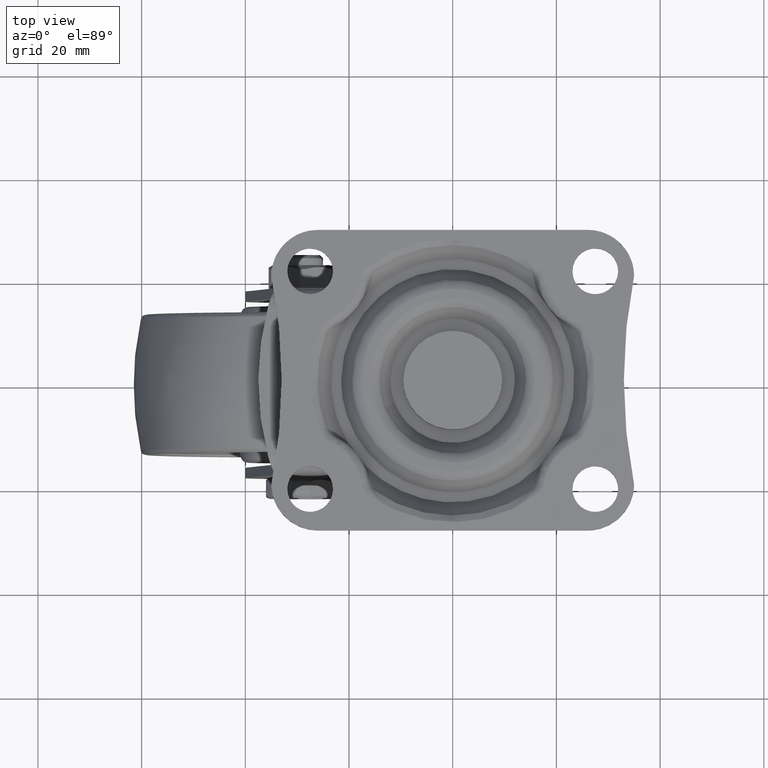
[diagram: clean part render]
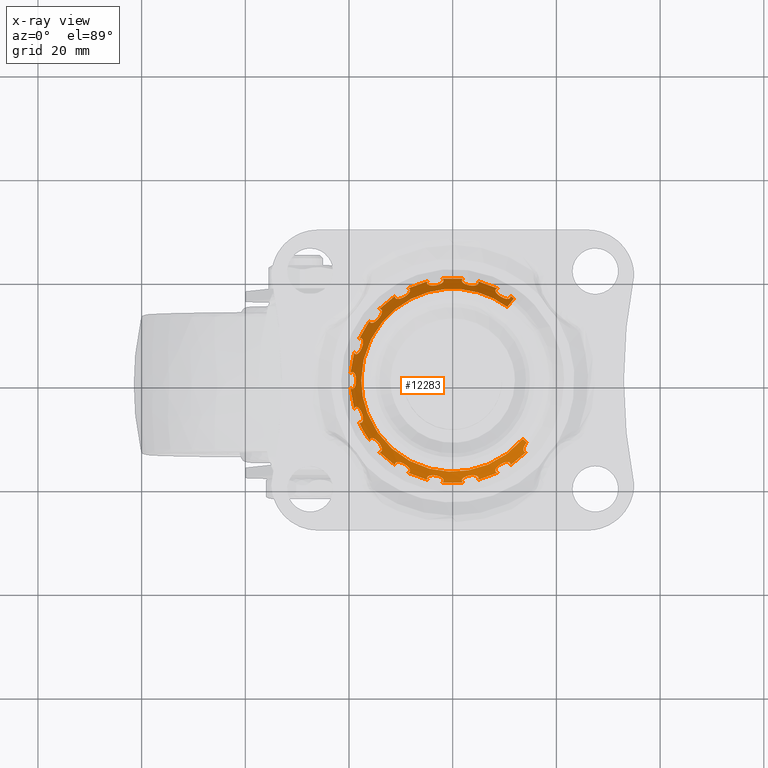
[diagram: x-ray — body ghosted, one internal face saturated and labeled with its STEP entity id]
A machine part, top view, then the same camera in x-ray: the body is ghosted and one INTERNAL B-rep face — a face not visible from any outside direction — is saturated and labeled: STEP entity #12283.
In plain terms, the highlighted face is a freeform B-spline surface patch.
Its self-contained STEP definition (entity closure, byte-faithful):
#11049=CARTESIAN_POINT('',(13.473622648980129,-11.289809597193509,-1.907499974953812));
#11050=CARTESIAN_POINT('',(2.812052120045651,-24.013671493682910,-1.907499974953812));
#11051=CARTESIAN_POINT('',(-10.500742812596730,-14.097258897093839,-1.907499974953812));
#11052=CARTESIAN_POINT('',(-24.598001709690550,-3.596516084497110,-1.907499974953812));
#11053=CARTESIAN_POINT('',(-14.097258897093820,10.500742812596711,-1.907499974953812));
#11054=CARTESIAN_POINT('',(-3.596516084497098,24.598001709690539,-1.907499974953812));
#11055=CARTESIAN_POINT('',(10.500742812596730,14.097258897093811,-1.907499974953812));
#11056=CARTESIAN_POINT('',(15.193887336236392,-12.731252725138685,-5.794813527519859));
#11057=CARTESIAN_POINT('',(3.171085031005554,-27.079652496578369,-5.794813527519861));
#11058=CARTESIAN_POINT('',(-11.841440672487989,-15.897147264133361,-5.794813527519859));
#11059=CARTESIAN_POINT('',(-27.738587936621336,-4.055706591645371,-5.794813527519859));
#11060=CARTESIAN_POINT('',(-15.897147264133350,11.841440672487980,-5.794813527519859));
#11061=CARTESIAN_POINT('',(-4.055706591645357,27.738587936621318,-5.794813527519859));
#11062=CARTESIAN_POINT('',(11.841440672487989,15.897147264133331,-5.794813527519859));
#11070=(BOUNDED_SURFACE()B_SPLINE_SURFACE(2,1,((#11049,#11056),(#11050,#11057),(#11051,#11058),(#11052,#11059),(#11053,#11060),(#11054,#11061),(#11055,#11062)),.UNSPECIFIED.,.F.,.F.,.U.)B_SPLINE_SURFACE_WITH_KNOTS((3,2,2,3),(2,2),(0.0,31.529574612749549,64.372881501030335,97.216188389311128),(0.0,4.488683051996978),.UNSPECIFIED.)GEOMETRIC_REPRESENTATION_ITEM()RATIONAL_B_SPLINE_SURFACE(((0.977505800795127,0.977505800795127),(0.718822509939086,0.718822509939086),(1.0,1.0),(0.707106781186548,0.707106781186548),(1.0,1.0),(0.707106781186548,0.707106781186548),(1.0,1.0)))REPRESENTATION_ITEM('')SURFACE());
#11071=CARTESIAN_POINT('',(13.514556966342740,-11.324109255208089,-2.000000000000145));
#11072=VERTEX_POINT('',#11071);
#11073=CARTESIAN_POINT('',(-17.631752619079300,-1.421085E-014,-2.0));
#11074=VERTEX_POINT('',#11073);
#11075=CARTESIAN_POINT('',(13.514556966342742,-11.324109255208086,-2.000000000000145));
#11076=CARTESIAN_POINT('',(8.229260321155994,-17.631752619079315,-2.000000000000000));
#11077=CARTESIAN_POINT('',(0.0,-17.631752619079311,-2.0));
#11078=CARTESIAN_POINT('',(-17.631752619079297,-17.631752619079307,-2.000000000000000));
#11079=CARTESIAN_POINT('',(-17.631752619079300,-1.421085E-014,-2.0));
#11087=(BOUNDED_CURVE()B_SPLINE_CURVE(2,(#11075,#11076,#11077,#11078,#11079),.UNSPECIFIED.,.F.,.U.)B_SPLINE_CURVE_WITH_KNOTS((3,2,3),(0.611719378419870,0.750000000000000,1.0),.UNSPECIFIED.)CURVE()GEOMETRIC_REPRESENTATION_ITEM()RATIONAL_B_SPLINE_CURVE((0.855206479072550,0.837994174583483,1.0,0.707106781186548,1.0))REPRESENTATION_ITEM(''));
#11088=EDGE_CURVE('',#11072,#11074,#11087,.T.);
#11089=ORIENTED_EDGE('',*,*,#11088,.F.);
#11090=CARTESIAN_POINT('',(14.284759052052859,-11.969476513273690,-3.740439733488001));
#11091=VERTEX_POINT('',#11090);
#11092=CARTESIAN_POINT('',(13.514556966342740,-11.324109255208089,-2.000000000000145));
#11093=CARTESIAN_POINT('',(14.284759052052859,-11.969476513273690,-3.740439733488001));
#11094=QUASI_UNIFORM_CURVE('',1,(#11092,#11093),.UNSPECIFIED.,.F.,.U.);
#11095=EDGE_CURVE('',#11072,#11091,#11094,.T.);
#11096=ORIENTED_EDGE('',*,*,#11095,.T.);
#11097=CARTESIAN_POINT('',(14.176270854944740,-13.776979346786520,-5.700000999999900));
#11098=VERTEX_POINT('',#11097);
#11099=CARTESIAN_POINT('',(14.176270854944720,-13.776979346786540,-5.700000999999913));
#11100=CARTESIAN_POINT('',(14.086627569363690,-13.785748848379100,-5.599239837097118));
#11101=CARTESIAN_POINT('',(14.006215023081010,-13.780010128165189,-5.493017387005052));
#11102=CARTESIAN_POINT('',(13.899815700383661,-13.749868489007120,-5.325201522157361));
#11103=CARTESIAN_POINT('',(13.866616844354800,-13.736045862652841,-5.267503031382193));
#11104=CARTESIAN_POINT('',(13.807123316315140,-13.701795670626661,-5.152559608920073));
#11105=CARTESIAN_POINT('',(13.780569042110979,-13.681340491912170,-5.094961053210059));
#11106=CARTESIAN_POINT('',(13.733791792340030,-13.633845123163370,-4.979505103879243));
#11107=CARTESIAN_POINT('',(13.713541048203201,-13.606756683505310,-4.921554533432865));
#11108=CARTESIAN_POINT('',(13.679736482788650,-13.545908565860010,-4.805776376598711));
#11109=CARTESIAN_POINT('',(13.666515151259411,-13.512778575447211,-4.749126166781879));
#11110=CARTESIAN_POINT('',(13.647058924776980,-13.441328454671231,-4.638213326381907));
#11111=CARTESIAN_POINT('',(13.640825479676170,-13.403007396819500,-4.583951091504198));
#11112=CARTESIAN_POINT('',(13.635318933460610,-13.321107939389741,-4.477863035527942));
#11113=CARTESIAN_POINT('',(13.636111812420330,-13.277360606606459,-4.425917463569542));
#11114=CARTESIAN_POINT('',(13.644502603739900,-13.187074288857790,-4.327462998989769));
#11115=CARTESIAN_POINT('',(13.652057153680261,-13.140256131253031,-4.280560938289389));
#11116=CARTESIAN_POINT('',(13.668231270584069,-13.067533382907410,-4.213642444341846));
#11117=CARTESIAN_POINT('',(13.674432235405879,-13.042875217235300,-4.191910537237838));
#11118=CARTESIAN_POINT('',(13.688450106428499,-12.992711408646221,-4.149607921427951));
#11119=CARTESIAN_POINT('',(13.696294786162801,-12.967124478692719,-4.128975594045229));
#11120=CARTESIAN_POINT('',(13.739249093221749,-12.838040351112101,-4.029567293214378));
#11121=CARTESIAN_POINT('',(13.784949944994050,-12.732162169844370,-3.962548368678089));
#11122=CARTESIAN_POINT('',(13.869095061901829,-12.569236235570470,-3.880070248476910));
#11123=CARTESIAN_POINT('',(13.899940763349409,-12.514002143307559,-3.855570189962345));
#11124=CARTESIAN_POINT('',(13.965298889166011,-12.404810069971839,-3.813882941326575));
#11125=CARTESIAN_POINT('',(14.034600343252441,-12.296288308149270,-3.779146680950956));
#11126=CARTESIAN_POINT('',(14.111489510042681,-12.188990323112851,-3.758021314472464));
#11127=CARTESIAN_POINT('',(14.172037172288199,-12.108965303930690,-3.747402576497022));
#11128=CARTESIAN_POINT('',(14.192724544560100,-12.082341368654330,-3.744741126182554));
#11129=CARTESIAN_POINT('',(14.234532492428331,-12.029922391894999,-3.741235082828840));
#11130=CARTESIAN_POINT('',(14.255716273446531,-12.004041785583830,-3.740376662402502));
#11131=CARTESIAN_POINT('',(14.279698896642509,-11.975476960558259,-3.740399042062825));
#11132=CARTESIAN_POINT('',(14.282227104869881,-11.972474537689040,-3.740413386884220));
#11133=CARTESIAN_POINT('',(14.284759052052859,-11.969476513273690,-3.740439733488001));
#11134=B_SPLINE_CURVE_WITH_KNOTS('',3,(#11099,#11100,#11101,#11102,#11103,#11104,#11105,#11106,#11107,#11108,#11109,#11110,#11111,#11112,#11113,#11114,#11115,#11116,#11117,#11118,#11119,#11120,#11121,#11122,#11123,#11124,#11125,#11126,#11127,#11128,#11129,#11130,#11131,#11132,#11133),.UNSPECIFIED.,.F.,.U.,(4,2,2,2,2,2,2,2,2,2,2,2,2,1,2,2,2,4),(0.0,0.062499999999997,0.093749999999996,0.124999999999995,0.156249999999993,0.187499999999992,0.218749999999991,0.249999999999989,0.281249999999988,0.296874999999988,0.312499999999987,0.374999999999988,0.406249999999988,0.437499999999988,0.468749999999989,0.484374999999989,0.499999999999990,0.501838228049542),.UNSPECIFIED.);
#11135=EDGE_CURVE('',#11098,#11091,#11134,.T.);
#11136=ORIENTED_EDGE('',*,*,#11135,.F.);
#11137=CARTESIAN_POINT('',(11.105992473733419,-16.353248804073001,-5.700000999999900));
#11138=VERTEX_POINT('',#11137);
#11139=CARTESIAN_POINT('',(14.176270854944740,-13.776979346786510,-5.700000999999900));
#11140=CARTESIAN_POINT('',(12.772392940876342,-15.221545173311499,-5.700000999999900));
#11141=CARTESIAN_POINT('',(11.105992473733419,-16.353248804072980,-5.700000999999900));
#11149=(BOUNDED_CURVE()B_SPLINE_CURVE(2,(#11139,#11140,#11141),.UNSPECIFIED.,.F.,.U.)CURVE()GEOMETRIC_REPRESENTATION_ITEM()QUASI_UNIFORM_CURVE()RATIONAL_B_SPLINE_CURVE((1.0,0.994848253465751,1.0))REPRESENTATION_ITEM(''));
#11150=EDGE_CURVE('',#11098,#11138,#11149,.T.);
#11151=ORIENTED_EDGE('',*,*,#11150,.T.);
#11152=CARTESIAN_POINT('',(8.609332661871219,-17.794696018526849,-5.700000999999900));
#11153=VERTEX_POINT('',#11152);
#11154=CARTESIAN_POINT('',(8.609332661871187,-17.794696018526871,-5.700000999999916));
#11155=CARTESIAN_POINT('',(8.522096181716105,-17.772276845078760,-5.599239837097123));
#11156=CARTESIAN_POINT('',(8.448495863265736,-17.739381501436210,-5.493017387005059));
#11157=CARTESIAN_POINT('',(8.358822252615328,-17.674666913942271,-5.325201522157367));
#11158=CARTESIAN_POINT('',(8.332353149233297,-17.650323216460041,-5.267503031382198));
#11159=CARTESIAN_POINT('',(8.288161775535643,-17.597790578765480,-5.152559608920080));
#11160=CARTESIAN_POINT('',(8.270205003171345,-17.569486901601401,-5.094961053210068));
#11161=CARTESIAN_POINT('',(8.242493139567690,-17.508857092395591,-4.979505103879249));
#11162=CARTESIAN_POINT('',(8.232728456751216,-17.476476123128180,-4.921554533432866));
#11163=CARTESIAN_POINT('',(8.221773838000422,-17.407735753680040,-4.805776376598714));
#11164=CARTESIAN_POINT('',(8.220680974394803,-17.372081784457830,-4.749126166781880));
#11165=CARTESIAN_POINT('',(8.226835482489358,-17.298286211840288,-4.638213326381910));
#11166=CARTESIAN_POINT('',(8.234084533824886,-17.260144232769509,-4.583951091504202));
#11167=CARTESIAN_POINT('',(8.256921337148532,-17.181300567250521,-4.477863035527950));
#11168=CARTESIAN_POINT('',(8.272628868684812,-17.140462702030462,-4.425917463569545));
#11169=CARTESIAN_POINT('',(8.311393372707126,-17.058491135133838,-4.327462998989772));
#11170=CARTESIAN_POINT('',(8.334505080513651,-17.017080266167209,-4.280560938289388));
#11171=CARTESIAN_POINT('',(8.374576423628092,-16.954275109965170,-4.213642444341847));
#11172=CARTESIAN_POINT('',(8.388837013870216,-16.933224868518071,-4.191910537237841));
#11173=CARTESIAN_POINT('',(8.419166536832705,-16.890880702012680,-4.149607921427952));
#11174=CARTESIAN_POINT('',(8.435289369941417,-16.869519891233882,-4.128975594045228));
#11175=CARTESIAN_POINT('',(8.519802587131887,-16.762911727342541,-4.029567293214380));
#11176=CARTESIAN_POINT('',(8.598959811038192,-16.679049393576289,-3.962548368678090));
#11177=CARTESIAN_POINT('',(8.733754307863427,-16.554728420349420,-3.880070248476910));
#11178=CARTESIAN_POINT('',(8.781630958048915,-16.513375202664239,-3.855570189962346));
#11179=CARTESIAN_POINT('',(8.880393395159473,-16.433122012661620,-3.813882941326574));
#11180=CARTESIAN_POINT('',(8.982632088706732,-16.354847407141591,-3.779146680950954));
#11181=CARTESIAN_POINT('',(9.091582343578615,-16.280317926223461,-3.758021314472465));
#11182=CARTESIAN_POINT('',(9.175848703526894,-16.225827526338989,-3.747402576497023));
#11183=CARTESIAN_POINT('',(9.204394396753358,-16.207884708852969,-3.744741126182552));
#11184=CARTESIAN_POINT('',(9.261609362799547,-16.172926143525110,-3.741235082828837));
#11185=CARTESIAN_POINT('',(9.290367294182596,-16.155851608573069,-3.740376662402500));
#11186=CARTESIAN_POINT('',(9.434894373374045,-16.072463822361051,-3.740476781977060));
#11187=CARTESIAN_POINT('',(9.552832632437482,-16.011997604289672,-3.754416358714668));
#11188=CARTESIAN_POINT('',(9.793654506683545,-15.904285091857160,-3.811093549317147));
#11189=CARTESIAN_POINT('',(9.912073792386160,-15.859064779359271,-3.852822582188060));
#11190=CARTESIAN_POINT('',(10.086138728203141,-15.804788051436640,-3.934809307402981));
#11191=CARTESIAN_POINT('',(10.143783978624180,-15.788919213260700,-3.965522826961893));
#11192=CARTESIAN_POINT('',(10.257198740905631,-15.762278733862930,-4.033437619840484));
#11193=CARTESIAN_POINT('',(10.366991287609579,-15.741120095280190,-4.106747579822303));
#11194=CARTESIAN_POINT('',(10.469784109645831,-15.730911741177570,-4.190535492350966));
#11195=CARTESIAN_POINT('',(10.544218365610231,-15.727557717092139,-4.257379239197422));
#11196=CARTESIAN_POINT('',(10.568585082197490,-15.727158850057270,-4.280329590283029));
#11197=CARTESIAN_POINT('',(10.616405951369480,-15.727860391743540,-4.327606779411830));
#11198=CARTESIAN_POINT('',(10.639910053324121,-15.728970648668250,-4.351996602217673));
#11199=CARTESIAN_POINT('',(10.753328729969949,-15.738278459678041,-4.475562504597813));
#11200=CARTESIAN_POINT('',(10.832505759922009,-15.757528749696780,-4.580758408095483));
#11201=CARTESIAN_POINT('',(10.916863345816150,-15.797094307868530,-4.720163247089048));
#11202=CARTESIAN_POINT('',(10.933048905590841,-15.805830719494470,-4.748554620940673));
#11203=CARTESIAN_POINT('',(10.963589588301501,-15.824757703140790,-4.805617436262366));
#11204=CARTESIAN_POINT('',(10.977910840277911,-15.834915959478529,-4.834209338360969));
#11205=CARTESIAN_POINT('',(11.018091919606791,-15.867436618528060,-4.920158533040306));
#11206=CARTESIAN_POINT('',(11.041181049335339,-15.891837198247030,-4.977688089306693));
#11207=CARTESIAN_POINT('',(11.070299247829229,-15.932509871221519,-5.064319007847058));
#11208=CARTESIAN_POINT('',(11.079083054929219,-15.946747996757880,-5.093252387466646));
#11209=CARTESIAN_POINT('',(11.094774308469180,-15.976607962023570,-5.151234309266938));
#11210=CARTESIAN_POINT('',(11.101701374184540,-15.992287063635059,-5.180383700102524));
#11211=CARTESIAN_POINT('',(11.119433668040021,-16.041035915120879,-5.267264280983525));
#11212=CARTESIAN_POINT('',(11.127156177686160,-16.075571535085249,-5.324043215463887));
#11213=CARTESIAN_POINT('',(11.134725856937351,-16.148510702058338,-5.435437663071196));
#11214=CARTESIAN_POINT('',(11.134571924766970,-16.186914889410971,-5.490052807529374));
#11215=CARTESIAN_POINT('',(11.126284205423650,-16.267571396551350,-5.597138281022890));
#11216=CARTESIAN_POINT('',(11.118098688908500,-16.309852006344240,-5.649600093646043));
#11217=CARTESIAN_POINT('',(11.105992473733419,-16.353248804073001,-5.700000999999900));
#11218=B_SPLINE_CURVE_WITH_KNOTS('',3,(#11154,#11155,#11156,#11157,#11158,#11159,#11160,#11161,#11162,#11163,#11164,#11165,#11166,#11167,#11168,#11169,#11170,#11171,#11172,#11173,#11174,#11175,#11176,#11177,#11178,#11179,#11180,#11181,#11182,#11183,#11184,#11185,#11186,#11187,#11188,#11189,#11190,#11191,#11192,#11193,#11194,#11195,#11196,#11197,#11198,#11199,#11200,#11201,#11202,#11203,#11204,#11205,#11206,#11207,#11208,#11209,#11210,#11211,#11212,#11213,#11214,#11215,#11216,#11217),.UNSPECIFIED.,.F.,.U.,(4,2,2,2,2,2,2,2,2,2,2,2,2,1,2,2,2,2,2,2,1,2,2,2,2,2,2,2,2,2,2,2,4),(0.0,0.062500000000002,0.093750000000004,0.125000000000006,0.156250000000007,0.187500000000009,0.218750000000010,0.250000000000012,0.281250000000013,0.296875000000013,0.312500000000013,0.375000000000012,0.406250000000012,0.437500000000011,0.468750000000011,0.484375000000011,0.500000000000011,0.562500000000010,0.625000000000010,0.656250000000009,0.687500000000009,0.718750000000008,0.734375000000008,0.750000000000008,0.812500000000007,0.828125000000007,0.843750000000007,0.875000000000005,0.890625000000004,0.906250000000004,0.937500000000002,0.968750000000001,1.0),.UNSPECIFIED.);
#11219=EDGE_CURVE('',#11153,#11138,#11218,.T.);
#11220=ORIENTED_EDGE('',*,*,#11219,.F.);
#11221=CARTESIAN_POINT('',(4.843078674261780,-19.165500364703501,-5.700000999999900));
#11222=VERTEX_POINT('',#11221);
#11223=CARTESIAN_POINT('',(8.609332661871227,-17.794696018526839,-5.700000999999900));
#11224=CARTESIAN_POINT('',(6.796048334505396,-18.671989340570466,-5.700000999999900));
#11225=CARTESIAN_POINT('',(4.843078674261776,-19.165500364703469,-5.700000999999900));
#11233=(BOUNDED_CURVE()B_SPLINE_CURVE(2,(#11223,#11224,#11225),.UNSPECIFIED.,.F.,.U.)CURVE()GEOMETRIC_REPRESENTATION_ITEM()QUASI_UNIFORM_CURVE()RATIONAL_B_SPLINE_CURVE((1.0,0.994848253465751,1.0))REPRESENTATION_ITEM(''));
#11234=EDGE_CURVE('',#11153,#11222,#11233,.T.);
#11235=ORIENTED_EDGE('',*,*,#11234,.T.);
#11236=CARTESIAN_POINT('',(2.003981889558235,-19.666109728689651,-5.700000999999900));
#11237=VERTEX_POINT('',#11236);
#11238=CARTESIAN_POINT('',(2.003981889558188,-19.666109728689641,-5.700000999999930));
#11239=CARTESIAN_POINT('',(1.929674221809086,-19.615205963390469,-5.599239837097137));
#11240=CARTESIAN_POINT('',(1.871763415821149,-19.559121660246131,-5.493017387005073));
#11241=CARTESIAN_POINT('',(1.809631478103673,-19.467639658753701,-5.325201522157380));
#11242=CARTESIAN_POINT('',(1.793084691878704,-19.435711099334569,-5.267503031382207));
#11243=CARTESIAN_POINT('',(1.769525604386197,-19.371232227376719,-5.152559608920086));
#11244=CARTESIAN_POINT('',(1.762332185622632,-19.338493892946840,-5.094961053210075));
#11245=CARTESIAN_POINT('',(1.757028167920433,-19.272042493074949,-4.979505103879257));
#11246=CARTESIAN_POINT('',(1.758927311283337,-19.238274616984040,-4.921554533432872));
#11247=CARTESIAN_POINT('',(1.772143927890608,-19.169933098788299,-4.805776376598718));
#11248=CARTESIAN_POINT('',(1.783311347688386,-19.136055545641430,-4.749126166781886));
#11249=CARTESIAN_POINT('',(1.814334265852860,-19.068815356346651,-4.638213326381912));
#11250=CARTESIAN_POINT('',(1.834191471049067,-19.035452941648419,-4.583951091504205));
#11251=CARTESIAN_POINT('',(1.882617168395762,-18.969174777710379,-4.477863035527952));
#11252=CARTESIAN_POINT('',(1.911344792386853,-18.936172029301769,-4.425917463569544));
#11253=CARTESIAN_POINT('',(1.975807437823661,-18.872402193996400,-4.327462998989772));
#11254=CARTESIAN_POINT('',(2.011688690442417,-18.841393375624630,-4.280560938289389));
#11255=CARTESIAN_POINT('',(2.070824064397852,-18.796081040309520,-4.213642444341849));
#11256=CARTESIAN_POINT('',(2.091424242413203,-18.781177692874429,-4.191910537237839));
#11257=CARTESIAN_POINT('',(2.134407229230190,-18.751760499866620,-4.149607921427951));
#11258=CARTESIAN_POINT('',(2.156863564092725,-18.737202237294429,-4.128975594045225));
#11259=CARTESIAN_POINT('',(2.272742150139288,-18.665928555026611,-4.029567293214377));
#11260=CARTESIAN_POINT('',(2.375808216740301,-18.614197103890280,-3.962548368678089));
#11261=CARTESIAN_POINT('',(2.544993887810966,-18.543476035863740,-3.880070248476910));
#11262=CARTESIAN_POINT('',(2.604126856137883,-18.520991501117599,-3.855570189962339));
#11263=CARTESIAN_POINT('',(2.724381397048545,-18.479356913573369,-3.813882941326569));
#11264=CARTESIAN_POINT('',(2.847225834732423,-18.440770536991732,-3.779146680950954));
#11265=CARTESIAN_POINT('',(2.975096169013875,-18.407998915528601,-3.758021314472457));
#11266=CARTESIAN_POINT('',(3.072917460016122,-18.385615481360521,-3.747402576497014));
#11267=CARTESIAN_POINT('',(3.105878442304481,-18.378517950261450,-3.744741126182545));
#11268=CARTESIAN_POINT('',(3.171599457220498,-18.365236315277102,-3.741235082828830));
#11269=CARTESIAN_POINT('',(3.204462908021734,-18.359027292592700,-3.740376662402495));
#11270=CARTESIAN_POINT('',(3.368794240433529,-18.330099577565090,-3.740476781977057));
#11271=CARTESIAN_POINT('',(3.500300616754917,-18.313617178905030,-3.754416358714663));
#11272=CARTESIAN_POINT('',(3.763439003847910,-18.294766457751489,-3.811093549317142));
#11273=CARTESIAN_POINT('',(3.890182990543151,-18.292775044856121,-3.852822582188056));
#11274=CARTESIAN_POINT('',(4.072314260531282,-18.301305318442939,-3.934809307402978));
#11275=CARTESIAN_POINT('',(4.131910539282644,-18.306109325119589,-3.965522826961892));
#11276=CARTESIAN_POINT('',(4.247597135068603,-18.319865596466059,-4.033437619840482));
#11277=CARTESIAN_POINT('',(4.358005061624239,-18.337534242483770,-4.106747579822301));
#11278=CARTESIAN_POINT('',(4.458090180694762,-18.363098743188839,-4.190535492350967));
#11279=CARTESIAN_POINT('',(4.529182645556620,-18.385405006399111,-4.257379239197424));
#11280=CARTESIAN_POINT('',(4.552216289886885,-18.393364101889318,-4.280329590283031));
#11281=CARTESIAN_POINT('',(4.596913266379279,-18.410379035963238,-4.327606779411831));
#11282=CARTESIAN_POINT('',(4.618620167311732,-18.419461212521831,-4.351996602217669));
#11283=CARTESIAN_POINT('',(4.722015401959501,-18.466999165885611,-4.475562504597811));
#11284=CARTESIAN_POINT('',(4.789833485789944,-18.512168660496521,-4.580758408095484));
#11285=CARTESIAN_POINT('',(4.855571468885315,-18.578200117165910,-4.720163247089049));
#11286=CARTESIAN_POINT('',(4.867792891212418,-18.591945446176901,-4.748554620940677));
#11287=CARTESIAN_POINT('',(4.890018335729962,-18.620176521721060,-4.805617436262373));
#11288=CARTESIAN_POINT('',(4.900001582244029,-18.634620316895258,-4.834209338360977));
#11289=CARTESIAN_POINT('',(4.926636725515429,-18.678922478738240,-4.920158533040318));
#11290=CARTESIAN_POINT('',(4.939987920569003,-18.709748470902070,-4.977688089306702));
#11291=CARTESIAN_POINT('',(4.953439203384117,-18.757927291986100,-5.064319007847065));
#11292=CARTESIAN_POINT('',(4.956823556361751,-18.774310992449731,-5.093252387466654));
#11293=CARTESIAN_POINT('',(4.961355801924269,-18.807736906251510,-5.151234309266948));
#11294=CARTESIAN_POINT('',(4.962502545880310,-18.824839638345178,-5.180383700102533));
#11295=CARTESIAN_POINT('',(4.962492362393768,-18.876713376044140,-5.267264280983534));
#11296=CARTESIAN_POINT('',(4.957937270032141,-18.911807497134919,-5.324043215463894));
#11297=CARTESIAN_POINT('',(4.940103777424008,-18.982936876888239,-5.435437663071208));
#11298=CARTESIAN_POINT('',(4.926824122836742,-19.018972360447808,-5.490052807529385));
#11299=CARTESIAN_POINT('',(4.891450063994377,-19.091930118068351,-5.597138281022902));
#11300=CARTESIAN_POINT('',(4.869297374306506,-19.128861283561349,-5.649600093646055));
#11301=CARTESIAN_POINT('',(4.843078674261780,-19.165500364703501,-5.700000999999900));
#11302=B_SPLINE_CURVE_WITH_KNOTS('',3,(#11238,#11239,#11240,#11241,#11242,#11243,#11244,#11245,#11246,#11247,#11248,#11249,#11250,#11251,#11252,#11253,#11254,#11255,#11256,#11257,#11258,#11259,#11260,#11261,#11262,#11263,#11264,#11265,#11266,#11267,#11268,#11269,#11270,#11271,#11272,#11273,#11274,#11275,#11276,#11277,#11278,#11279,#11280,#11281,#11282,#11283,#11284,#11285,#11286,#11287,#11288,#11289,#11290,#11291,#11292,#11293,#11294,#11295,#11296,#11297,#11298,#11299,#11300,#11301),.UNSPECIFIED.,.F.,.U.,(4,2,2,2,2,2,2,2,2,2,2,2,2,1,2,2,2,2,2,2,1,2,2,2,2,2,2,2,2,2,2,2,4),(0.0,0.062500000000001,0.093750000000001,0.125000000000002,0.156250000000002,0.187500000000003,0.218750000000004,0.250000000000004,0.281250000000005,0.296875000000005,0.312500000000006,0.375000000000006,0.406250000000006,0.437500000000006,0.468750000000006,0.484375000000006,0.500000000000006,0.562500000000007,0.625000000000008,0.656250000000008,0.687500000000008,0.718750000000008,0.734375000000008,0.750000000000008,0.812500000000007,0.828125000000006,0.843750000000006,0.875000000000005,0.890625000000005,0.906250000000005,0.937500000000003,0.968750000000002,1.0),.UNSPECIFIED.);
#11303=EDGE_CURVE('',#11237,#11222,#11302,.T.);
#11304=ORIENTED_EDGE('',*,*,#11303,.F.);
#11305=CARTESIAN_POINT('',(-2.003981889554650,-19.666109728690000,-5.700000999999900));
#11306=VERTEX_POINT('',#11305);
#11307=CARTESIAN_POINT('',(2.003981889558232,-19.666109728689619,-5.700000999999900));
#11308=CARTESIAN_POINT('',(1.814521E-012,-19.870316024142912,-5.700000999999900));
#11309=CARTESIAN_POINT('',(-2.003981889554649,-19.666109728689989,-5.700000999999900));
#11317=(BOUNDED_CURVE()B_SPLINE_CURVE(2,(#11307,#11308,#11309),.UNSPECIFIED.,.F.,.U.)CURVE()GEOMETRIC_REPRESENTATION_ITEM()QUASI_UNIFORM_CURVE()RATIONAL_B_SPLINE_CURVE((1.0,0.994848253465751,1.0))REPRESENTATION_ITEM(''));
#11318=EDGE_CURVE('',#11237,#11306,#11317,.T.);
#11319=ORIENTED_EDGE('',*,*,#11318,.T.);
#11320=CARTESIAN_POINT('',(-4.843078674258280,-19.165500364704350,-5.700000999999900));
#11321=VERTEX_POINT('',#11320);
#11322=CARTESIAN_POINT('',(-4.843078674258263,-19.165500364704350,-5.700000999999897));
#11323=CARTESIAN_POINT('',(-4.895494928206466,-19.092251752908759,-5.599239837097106));
#11324=CARTESIAN_POINT('',(-4.930731323857351,-19.019743084938010,-5.493017387005042));
#11325=CARTESIAN_POINT('',(-4.957827559983433,-18.912527748957611,-5.325201522157350));
#11326=CARTESIAN_POINT('',(-4.962456242428043,-18.876865383082901,-5.267503031382188));
#11327=CARTESIAN_POINT('',(-4.962541470068707,-18.808217380426711,-5.152559608920071));
#11328=CARTESIAN_POINT('',(-4.958103902765089,-18.774993115029609,-5.094961053210058));
#11329=CARTESIAN_POINT('',(-4.940360331751988,-18.710735144034381,-4.979505103879241));
#11330=CARTESIAN_POINT('',(-4.927026426927643,-18.679653265337329,-4.921554533432868));
#11331=CARTESIAN_POINT('',(-4.891232693981635,-18.619953594101769,-4.805776376598715));
#11332=CARTESIAN_POINT('',(-4.869151946421630,-18.591938589919199,-4.749126166781884));
#11333=CARTESIAN_POINT('',(-4.817002439967387,-18.539363943135641,-4.638213326381915));
#11334=CARTESIAN_POINT('',(-4.786932152918300,-18.514805092399381,-4.583951091504205));
#11335=CARTESIAN_POINT('',(-4.718758415335745,-18.469086554774719,-4.477863035527953));
#11336=CARTESIAN_POINT('',(-4.680475674317763,-18.447899541704331,-4.425917463569558));
#11337=CARTESIAN_POINT('',(-4.598090033873463,-18.410023021270600,-4.327462998989787));
#11338=CARTESIAN_POINT('',(-4.553767045059192,-18.393156374630721,-4.280560938289403));
#11339=CARTESIAN_POINT('',(-4.482700239106957,-18.370802196580382,-4.213642444341860));
#11340=CARTESIAN_POINT('',(-4.458245158813277,-18.363843306807979,-4.191910537237854));
#11341=CARTESIAN_POINT('',(-4.407793090713244,-18.350901234926010,-4.149607921427966));
#11342=CARTESIAN_POINT('',(-4.381711819501521,-18.344901461883719,-4.128975594045254));
#11343=CARTESIAN_POINT('',(-4.248444532261871,-18.317558919208420,-4.029567293214401));
#11344=CARTESIAN_POINT('',(-4.133900911691383,-18.304197927183960,-3.962548368678114));
#11345=CARTESIAN_POINT('',(-3.950730355220982,-18.295606768893549,-3.880070248476932));
#11346=CARTESIAN_POINT('',(-3.887473377442545,-18.294702883813262,-3.855570189962372));
#11347=CARTESIAN_POINT('',(-3.760231205133619,-18.296708644446309,-3.813882941326601));
#11348=CARTESIAN_POINT('',(-3.631597874310542,-18.302464773168790,-3.779146736561732));
#11349=CARTESIAN_POINT('',(-3.500230511277074,-18.315403562491031,-3.758021314472491));
#11350=CARTESIAN_POINT('',(-3.400652980604224,-18.327826866544331,-3.747402576497048));
#11351=CARTESIAN_POINT('',(-3.367252290170248,-18.332430688831160,-3.744741126182579));
#11352=CARTESIAN_POINT('',(-3.300952150722159,-18.342427945385470,-3.741235082828862));
#11353=CARTESIAN_POINT('',(-3.267946997682248,-18.347833334739850,-3.740376662402526));
#11354=CARTESIAN_POINT('',(-3.103632196011143,-18.376854800256581,-3.740476781977085));
#11355=CARTESIAN_POINT('',(-2.974419312243579,-18.406344241540559,-3.754416358714696));
#11356=CARTESIAN_POINT('',(-2.720702785296065,-18.478628986844111,-3.811093549317174));
#11357=CARTESIAN_POINT('',(-2.600921292945673,-18.520106667336570,-3.852822582188081));
#11358=CARTESIAN_POINT('',(-2.432691407918230,-18.590415065544800,-3.934809307403002));
#11359=CARTESIAN_POINT('',(-2.378332291601379,-18.615312482969280,-3.965522826961912));
#11360=CARTESIAN_POINT('',(-2.274327373115017,-18.667806295714659,-4.033437619840504));
#11361=CARTESIAN_POINT('',(-2.176620892097760,-18.722171126861632,-4.106747579822317));
#11362=CARTESIAN_POINT('',(-2.091315218451910,-18.780425026297522,-4.190535492350985));
#11363=CARTESIAN_POINT('',(-2.032139345167979,-18.825701112254940,-4.257379239197440));
#11364=CARTESIAN_POINT('',(-2.013216970541330,-18.841058185890379,-4.280329590283047));
#11365=CARTESIAN_POINT('',(-1.977035001750622,-18.872334260188961,-4.327606779411849));
#11366=CARTESIAN_POINT('',(-1.959743474452554,-18.888292911849810,-4.351996602217675));
#11367=CARTESIAN_POINT('',(-1.878842673052511,-18.968327228806452,-4.475562504597816));
#11368=CARTESIAN_POINT('',(-1.830563397141976,-19.033967820328709,-4.580758408095491));
#11369=CARTESIAN_POINT('',(-1.791373987795975,-19.118500807300890,-4.720163247089054));
#11370=CARTESIAN_POINT('',(-1.784590786818084,-19.135597164158739,-4.748554620940666));
#11371=CARTESIAN_POINT('',(-1.773361297115114,-19.169727247243799,-4.805617436262358));
#11372=CARTESIAN_POINT('',(-1.768920182930002,-19.186714446388731,-4.834209338360965));
#11373=CARTESIAN_POINT('',(-1.759043567087468,-19.237454616476629,-4.920158533040306));
#11374=CARTESIAN_POINT('',(-1.757040657874980,-19.270987951487179,-4.977688089306691));
#11375=CARTESIAN_POINT('',(-1.760878713965934,-19.320861843814349,-5.064319007847057));
#11376=CARTESIAN_POINT('',(-1.763302018027493,-19.337415003131650,-5.093252387466643));
#11377=CARTESIAN_POINT('',(-1.770475436146083,-19.370375206951099,-5.151234309266936));
#11378=CARTESIAN_POINT('',(-1.775247328194599,-19.386838727627008,-5.180383700102504));
#11379=CARTESIAN_POINT('',(-1.792998760744390,-19.435580613197761,-5.267264280983508));
#11380=CARTESIAN_POINT('',(-1.809282043748968,-19.467000366477361,-5.324043215463873));
#11381=CARTESIAN_POINT('',(-1.850367725813563,-19.527740706054779,-5.435437663071183));
#11382=CARTESIAN_POINT('',(-1.875171380487658,-19.557061074676920,-5.490052807529358));
#11383=CARTESIAN_POINT('',(-1.933365145267173,-19.613520300466750,-5.597138281022876));
#11384=CARTESIAN_POINT('',(-1.966813066812519,-19.640647578055439,-5.649600093646020));
#11385=CARTESIAN_POINT('',(-2.003981889554650,-19.666109728690000,-5.700000999999900));
#11386=B_SPLINE_CURVE_WITH_KNOTS('',3,(#11322,#11323,#11324,#11325,#11326,#11327,#11328,#11329,#11330,#11331,#11332,#11333,#11334,#11335,#11336,#11337,#11338,#11339,#11340,#11341,#11342,#11343,#11344,#11345,#11346,#11347,#11348,#11349,#11350,#11351,#11352,#11353,#11354,#11355,#11356,#11357,#11358,#11359,#11360,#11361,#11362,#11363,#11364,#11365,#11366,#11367,#11368,#11369,#11370,#11371,#11372,#11373,#11374,#11375,#11376,#11377,#11378,#11379,#11380,#11381,#11382,#11383,#11384,#11385),.UNSPECIFIED.,.F.,.U.,(4,2,2,2,2,2,2,2,2,2,2,2,2,1,2,2,2,2,2,2,1,2,2,2,2,2,2,2,2,2,2,2,4),(0.0,0.062500000000000,0.093750000000000,0.125000000000000,0.156250000000000,0.187500000000000,0.218750000000000,0.249999999999999,0.281249999999999,0.296875000000000,0.312500000000000,0.374999999999999,0.406249999999999,0.437499999999999,0.468749999999999,0.484374999999999,0.499999999999999,0.562499999999998,0.624999999999997,0.656249999999996,0.687499999999996,0.718749999999996,0.734374999999996,0.749999999999996,0.812499999999996,0.828124999999997,0.843749999999997,0.874999999999997,0.890624999999998,0.906249999999998,0.937499999999999,0.968749999999999,1.0),.UNSPECIFIED.);
#11387=EDGE_CURVE('',#11321,#11306,#11386,.T.);
#11388=ORIENTED_EDGE('',*,*,#11387,.F.);
#11389=CARTESIAN_POINT('',(-8.609332661867979,-17.794696018528452,-5.700000999999900));
#11390=VERTEX_POINT('',#11389);
#11391=CARTESIAN_POINT('',(-4.843078674258285,-19.165500364704350,-5.700000999999900));
#11392=CARTESIAN_POINT('',(-6.796048334501999,-18.671989340571702,-5.700000999999900));
#11393=CARTESIAN_POINT('',(-8.609332661867969,-17.794696018528420,-5.700000999999900));
#11401=(BOUNDED_CURVE()B_SPLINE_CURVE(2,(#11391,#11392,#11393),.UNSPECIFIED.,.F.,.U.)CURVE()GEOMETRIC_REPRESENTATION_ITEM()QUASI_UNIFORM_CURVE()RATIONAL_B_SPLINE_CURVE((1.0,0.994848253465752,1.0))REPRESENTATION_ITEM(''));
#11402=EDGE_CURVE('',#11321,#11390,#11401,.T.);
#11403=ORIENTED_EDGE('',*,*,#11402,.T.);
#11404=CARTESIAN_POINT('',(-11.105992473730440,-16.353248804075001,-5.700000999999910));
#11405=VERTEX_POINT('',#11404);
#11406=CARTESIAN_POINT('',(-11.105992473730470,-16.353248804074990,-5.700000999999912));
#11407=CARTESIAN_POINT('',(-11.130195140070089,-16.266490209399901,-5.599239837097116));
#11408=CARTESIAN_POINT('',(-11.138507096034621,-16.186302792073992,-5.493017387005055));
#11409=CARTESIAN_POINT('',(-11.127299424594639,-16.076285873454680,-5.325201522157362));
#11410=CARTESIAN_POINT('',(-11.119451715843990,-16.041191108769329,-5.267503031382192));
#11411=CARTESIAN_POINT('',(-11.096052803921520,-15.976653937671751,-5.152559608920073));
#11412=CARTESIAN_POINT('',(-11.080519486659060,-15.946951078052249,-5.094961053210059));
#11413=CARTESIAN_POINT('',(-11.041868463462061,-15.892636995582381,-4.979505103879241));
#11414=CARTESIAN_POINT('',(-11.018708062885560,-15.867990047569711,-4.921554533432859));
#11415=CARTESIAN_POINT('',(-10.964654466053330,-15.824132884718679,-4.805776376598705));
#11416=CARTESIAN_POINT('',(-10.934323654763960,-15.805359452462220,-4.749126166781874));
#11417=CARTESIAN_POINT('',(-10.867337560143080,-15.773791626511141,-4.638213326381904));
#11418=CARTESIAN_POINT('',(-10.830681111649399,-15.760998499585661,-4.583951091504194));
#11419=CARTESIAN_POINT('',(-10.750982092720649,-15.741353918645681,-4.477863035527941));
#11420=CARTESIAN_POINT('',(-10.707761698235609,-15.734538107376810,-4.425917463569538));
#11421=CARTESIAN_POINT('',(-10.617389986903950,-15.727123369176910,-4.327462998989765));
#11422=CARTESIAN_POINT('',(-10.569971268482810,-15.726433260778910,-4.280560938289384));
#11423=CARTESIAN_POINT('',(-10.495544736165970,-15.729733483778761,-4.213642444341841));
#11424=CARTESIAN_POINT('',(-10.470184397195929,-15.731558396477840,-4.191910537237832));
#11425=CARTESIAN_POINT('',(-10.418348511818930,-15.736652450595329,-4.149607921427947));
#11426=CARTESIAN_POINT('',(-10.391788090484710,-15.739934828259051,-4.128975594045226));
#11427=CARTESIAN_POINT('',(-10.257206103708761,-15.759821339355870,-4.029567293214375));
#11428=CARTESIAN_POINT('',(-10.145000580293390,-15.786442339268660,-3.962548368678086));
#11429=CARTESIAN_POINT('',(-9.969938210843093,-15.841017311196220,-3.880070248476909));
#11430=CARTESIAN_POINT('',(-9.910186948706752,-15.861803097662371,-3.855570189962345));
#11431=CARTESIAN_POINT('',(-9.791304428874474,-15.907207282138479,-3.813882941326573));
#11432=CARTESIAN_POINT('',(-9.672397285249280,-15.956611285240120,-3.779146680950955));
#11433=CARTESIAN_POINT('',(-9.553377734007380,-16.013700233248890,-3.758021314472463));
#11434=CARTESIAN_POINT('',(-9.464054483470909,-16.059431841706299,-3.747402576497019));
#11435=CARTESIAN_POINT('',(-9.434242701099324,-16.075181728466049,-3.744741126182551));
#11436=CARTESIAN_POINT('',(-9.375360212422450,-16.107252059874781,-3.741235082828836));
#11437=CARTESIAN_POINT('',(-9.346194265704650,-16.123619891536769,-3.740376662402500));
#11438=CARTESIAN_POINT('',(-9.201714784883963,-16.207090120545320,-3.740476781977062));
#11439=CARTESIAN_POINT('',(-9.090380374431657,-16.278994539936679,-3.754416358714671));
#11440=CARTESIAN_POINT('',(-8.876687665236625,-16.433696144604490,-3.811093549317148));
#11441=CARTESIAN_POINT('',(-8.778316082995081,-16.513640098072020,-3.852822582188062));
#11442=CARTESIAN_POINT('',(-8.644278589871307,-16.637246390436331,-3.934809307402985));
#11443=CARTESIAN_POINT('',(-8.601713147671875,-16.679234222620490,-3.965522826961897));
#11444=CARTESIAN_POINT('',(-8.521934434603681,-16.764134048221521,-4.033437619840489));
#11445=CARTESIAN_POINT('',(-8.448714242729565,-16.848637863521951,-4.106747579822306));
#11446=CARTESIAN_POINT('',(-8.388477137727735,-16.932554881680719,-4.190535492350971));
#11447=CARTESIAN_POINT('',(-8.348355339682646,-16.995339826214970,-4.257379239197427));
#11448=CARTESIAN_POINT('',(-8.335826552404095,-17.016242588268920,-4.280329590283035));
#11449=CARTESIAN_POINT('',(-8.312523670740218,-17.058007446646052,-4.327606779411833));
#11450=CARTESIAN_POINT('',(-8.301733130464433,-17.078917724494271,-4.351996602217676));
#11451=CARTESIAN_POINT('',(-8.253084592929621,-17.181795085238061,-4.475562504597815));
#11452=CARTESIAN_POINT('',(-8.230167318140023,-17.259989549582119,-4.580758408095487));
#11453=CARTESIAN_POINT('',(-8.222253303684605,-17.352828141054250,-4.720163247089050));
#11454=CARTESIAN_POINT('',(-8.221726478203243,-17.371213452806561,-4.748554620940674));
#11455=CARTESIAN_POINT('',(-8.222847385502645,-17.407125951706089,-4.805617436262369));
#11456=CARTESIAN_POINT('',(-8.224484067561074,-17.424607647900519,-4.834209338360974));
#11457=CARTESIAN_POINT('',(-8.232557244781342,-17.475665812875580,-4.920158533040316));
#11458=CARTESIAN_POINT('',(-8.242144201820757,-17.507861875631260,-4.977688089306703));
#11459=CARTESIAN_POINT('',(-8.262808670609534,-17.553415311726649,-5.064319007847062));
#11460=CARTESIAN_POINT('',(-8.270747345476307,-17.568141374585359,-5.093252387466650));
#11461=CARTESIAN_POINT('',(-8.288761207182528,-17.596660381401040,-5.151234309266942));
#11462=CARTESIAN_POINT('',(-8.298876174628921,-17.610498947089969,-5.180383700102528));
#11463=CARTESIAN_POINT('',(-8.332227771493212,-17.650229989779088,-5.267264280983530));
#11464=CARTESIAN_POINT('',(-8.358275240894727,-17.674185689295800,-5.324043215463894));
#11465=CARTESIAN_POINT('',(-8.417657572798705,-17.717210807312370,-5.435437663071203));
#11466=CARTESIAN_POINT('',(-8.450993540742978,-17.736279591818679,-5.490052807529380));
#11467=CARTESIAN_POINT('',(-8.524987984578729,-17.769430469898118,-5.597138281022895));
#11468=CARTESIAN_POINT('',(-8.565696825004444,-17.783481909549351,-5.649600093646046));
#11469=CARTESIAN_POINT('',(-8.609332661867979,-17.794696018528452,-5.700000999999900));
#11470=B_SPLINE_CURVE_WITH_KNOTS('',3,(#11406,#11407,#11408,#11409,#11410,#11411,#11412,#11413,#11414,#11415,#11416,#11417,#11418,#11419,#11420,#11421,#11422,#11423,#11424,#11425,#11426,#11427,#11428,#11429,#11430,#11431,#11432,#11433,#11434,#11435,#11436,#11437,#11438,#11439,#11440,#11441,#11442,#11443,#11444,#11445,#11446,#11447,#11448,#11449,#11450,#11451,#11452,#11453,#11454,#11455,#11456,#11457,#11458,#11459,#11460,#11461,#11462,#11463,#11464,#11465,#11466,#11467,#11468,#11469),.UNSPECIFIED.,.F.,.U.,(4,2,2,2,2,2,2,2,2,2,2,2,2,1,2,2,2,2,2,2,1,2,2,2,2,2,2,2,2,2,2,2,4),(0.0,0.062500000000000,0.093750000000001,0.125000000000001,0.156250000000001,0.187500000000002,0.218750000000002,0.250000000000002,0.281250000000003,0.296875000000003,0.312500000000003,0.375000000000001,0.406250000000001,0.437500000000000,0.468749999999999,0.484374999999999,0.499999999999999,0.562499999999997,0.624999999999995,0.656249999999995,0.687499999999994,0.718749999999993,0.734374999999993,0.749999999999992,0.812499999999994,0.828124999999994,0.843749999999994,0.874999999999995,0.890624999999996,0.906249999999997,0.937499999999998,0.968749999999999,1.0),.UNSPECIFIED.);
#11471=EDGE_CURVE('',#11405,#11390,#11470,.T.);
#11472=ORIENTED_EDGE('',*,*,#11471,.F.);
#11473=CARTESIAN_POINT('',(-14.176270854942221,-13.776979346789100,-5.700000999999900));
#11474=VERTEX_POINT('',#11473);
#11475=CARTESIAN_POINT('',(-11.105992473730440,-16.353248804075012,-5.700000999999900));
#11476=CARTESIAN_POINT('',(-12.772392940873566,-15.221545173313837,-5.700000999999900));
#11477=CARTESIAN_POINT('',(-14.176270854942221,-13.776979346789110,-5.700000999999900));
#11485=(BOUNDED_CURVE()B_SPLINE_CURVE(2,(#11475,#11476,#11477),.UNSPECIFIED.,.F.,.U.)CURVE()GEOMETRIC_REPRESENTATION_ITEM()QUASI_UNIFORM_CURVE()RATIONAL_B_SPLINE_CURVE((1.0,0.994848253465751,1.0))REPRESENTATION_ITEM(''));
#11486=EDGE_CURVE('',#11405,#11474,#11485,.T.);
#11487=ORIENTED_EDGE('',*,*,#11486,.T.);
#11488=CARTESIAN_POINT('',(-16.029359673878400,-11.568554089426179,-5.700000999999900));
#11489=VERTEX_POINT('',#11488);
#11490=CARTESIAN_POINT('',(-16.029359673878400,-11.568554089426170,-5.700000999999911));
#11491=CARTESIAN_POINT('',(-16.022429553855581,-11.478749878809870,-5.599239837097112));
#11492=CARTESIAN_POINT('',(-16.002814525573019,-11.400555498098530,-5.493017387005046));
#11493=CARTESIAN_POINT('',(-15.954654757150260,-11.301006660902621,-5.325201522157355));
#11494=CARTESIAN_POINT('',(-15.935277206699530,-11.270712443971250,-5.267503031382187));
#11495=CARTESIAN_POINT('',(-15.891216409322929,-11.218070239733841,-5.152559608920064));
#11496=CARTESIAN_POINT('',(-15.866460889410840,-11.195471389129590,-5.094961053210056));
#11497=CARTESIAN_POINT('',(-15.811564297855840,-11.157652275121411,-4.979505103879239));
#11498=CARTESIAN_POINT('',(-15.781370887647830,-11.142413043473670,-4.921554533432866));
#11499=CARTESIAN_POINT('',(-15.715577088453490,-11.119688210109780,-4.805776376598709));
#11500=CARTESIAN_POINT('',(-15.680654556911350,-11.112420702775941,-4.749126166781875));
#11501=CARTESIAN_POINT('',(-15.606911385744560,-11.105667243358520,-4.638213326381905));
#11502=CARTESIAN_POINT('',(-15.568090084486199,-11.106182880157490,-4.583951091504193));
#11503=CARTESIAN_POINT('',(-15.486478662126309,-11.114981682286681,-4.477863035527942));
#11504=CARTESIAN_POINT('',(-15.443533631614200,-11.123359160249009,-4.425917463569542));
#11505=CARTESIAN_POINT('',(-15.356076011526200,-11.147300531139750,-4.327462998989768));
#11506=CARTESIAN_POINT('',(-15.311280960765529,-11.162870198241320,-4.280560938289384));
#11507=CARTESIAN_POINT('',(-15.242471640300129,-11.191426766691460,-4.213642444341846));
#11508=CARTESIAN_POINT('',(-15.219264873812239,-11.201815370457700,-4.191910537237832));
#11509=CARTESIAN_POINT('',(-15.172297343950950,-11.224331132467830,-4.149607921427949));
#11510=CARTESIAN_POINT('',(-15.148461351297209,-11.236499757648581,-4.128975594045232));
#11511=CARTESIAN_POINT('',(-15.028797238808730,-11.301216715785610,-4.029567293214378));
#11512=CARTESIAN_POINT('',(-14.932463454649531,-11.364608822162070,-3.962548368678091));
#11513=CARTESIAN_POINT('',(-14.786624377620440,-11.475767377252311,-3.880070248476912));
#11514=CARTESIAN_POINT('',(-14.737585715174570,-11.515735762651531,-3.855570189962347));
#11515=CARTESIAN_POINT('',(-14.641401834229841,-11.599061956228480,-3.813882941326573));
#11516=CARTESIAN_POINT('',(-14.546562833028201,-11.686155171685510,-3.779146680950954));
#11517=CARTESIAN_POINT('',(-14.454246609177220,-11.780508318832100,-3.758021314472466));
#11518=CARTESIAN_POINT('',(-14.385951341062610,-11.854032324786999,-3.747402576497024));
#11519=CARTESIAN_POINT('',(-14.363324207682480,-11.879028607232870,-3.744741126182552));
#11520=CARTESIAN_POINT('',(-14.318961466924231,-11.929303858220459,-3.741235082828837));
#11521=CARTESIAN_POINT('',(-14.297152570146240,-11.954659930128150,-3.740376662402502));
#11522=CARTESIAN_POINT('',(-14.189934767853000,-12.082511181120701,-3.740476781977063));
#11523=CARTESIAN_POINT('',(-14.109907403737390,-12.188157844444630,-3.754416358714671));
#11524=CARTESIAN_POINT('',(-13.962013006792279,-12.406617011801240,-3.811093549317147));
#11525=CARTESIAN_POINT('',(-13.896916399287839,-12.515384817608560,-3.852822582188062));
#11526=CARTESIAN_POINT('',(-13.813238197921180,-12.677380261035200,-3.934809307402980));
#11527=CARTESIAN_POINT('',(-13.787600450367441,-12.731394155743221,-3.965522826961892));
#11528=CARTESIAN_POINT('',(-13.741670432921859,-12.838459822244440,-4.033437619840486));
#11529=CARTESIAN_POINT('',(-13.701767965945839,-12.942910214429650,-4.106747579822302));
#11530=CARTESIAN_POINT('',(-13.673864913456249,-13.042368720438050,-4.190535492350967));
#11531=CARTESIAN_POINT('',(-13.657636471628910,-13.115089732631191,-4.257379239197421));
#11532=CARTESIAN_POINT('',(-13.653012428349451,-13.139017001508041,-4.280329590283026));
#11533=CARTESIAN_POINT('',(-13.645399305254980,-13.186233185659770,-4.327606779411822));
#11534=CARTESIAN_POINT('',(-13.642411250410150,-13.209573001584010,-4.351996602217668));
#11535=CARTESIAN_POINT('',(-13.631882708343230,-13.322884878101130,-4.475562504597812));
#11536=CARTESIAN_POINT('',(-13.637091596237150,-13.404201808839719,-4.580758408095480));
#11537=CARTESIAN_POINT('',(-13.661407523614050,-13.494148300528559,-4.720163247089042));
#11538=CARTESIAN_POINT('',(-13.667200616557380,-13.511605027239700,-4.748554620940664));
#11539=CARTESIAN_POINT('',(-13.680536722896001,-13.544968364574370,-4.805617436262359));
#11540=CARTESIAN_POINT('',(-13.688053793186890,-13.560836007254890,-4.834209338360965));
#11541=CARTESIAN_POINT('',(-13.713103019149781,-13.606053798882860,-4.920158533040304));
#11542=CARTESIAN_POINT('',(-13.733123513933730,-13.633029269052059,-4.977688089306692));
#11543=CARTESIAN_POINT('',(-13.768121955509329,-13.668767832225450,-5.064319007847051));
#11544=CARTESIAN_POINT('',(-13.780618479830011,-13.679890618111260,-5.093252387466640));
#11545=CARTESIAN_POINT('',(-13.807300047545811,-13.700528614805490,-5.151234309266930));
#11546=CARTESIAN_POINT('',(-13.821538076035020,-13.710073090249880,-5.180383700102516));
#11547=CARTESIAN_POINT('',(-13.866467142414839,-13.736001139941330,-5.267264280983521));
#11548=CARTESIAN_POINT('',(-13.899137088983769,-13.749603374784970,-5.324043215463886));
#11549=CARTESIAN_POINT('',(-13.969653685109620,-13.769723807024770,-5.435437663071196));
#11550=CARTESIAN_POINT('',(-14.007501156603510,-13.776241030578500,-5.490052807529366));
#11551=CARTESIAN_POINT('',(-14.088371457527220,-13.782085075796321,-5.597138281022883));
#11552=CARTESIAN_POINT('',(-14.131431129879459,-13.781365866510971,-5.649600093646034));
#11553=CARTESIAN_POINT('',(-14.176270854942221,-13.776979346789100,-5.700000999999900));
#11554=B_SPLINE_CURVE_WITH_KNOTS('',3,(#11490,#11491,#11492,#11493,#11494,#11495,#11496,#11497,#11498,#11499,#11500,#11501,#11502,#11503,#11504,#11505,#11506,#11507,#11508,#11509,#11510,#11511,#11512,#11513,#11514,#11515,#11516,#11517,#11518,#11519,#11520,#11521,#11522,#11523,#11524,#11525,#11526,#11527,#11528,#11529,#11530,#11531,#11532,#11533,#11534,#11535,#11536,#11537,#11538,#11539,#11540,#11541,#11542,#11543,#11544,#11545,#11546,#11547,#11548,#11549,#11550,#11551,#11552,#11553),.UNSPECIFIED.,.F.,.U.,(4,2,2,2,2,2,2,2,2,2,2,2,2,1,2,2,2,2,2,2,1,2,2,2,2,2,2,2,2,2,2,2,4),(0.0,0.062500000000000,0.093750000000000,0.125000000000000,0.156250000000000,0.187500000000000,0.218750000000001,0.250000000000002,0.281250000000002,0.296875000000002,0.312500000000003,0.375000000000003,0.406250000000003,0.437500000000003,0.468750000000003,0.484375000000003,0.500000000000002,0.562500000000002,0.625000000000001,0.656250000000001,0.687500000000000,0.718749999999999,0.734374999999999,0.749999999999999,0.812499999999999,0.828124999999999,0.843749999999999,0.875000000000000,0.890625000000000,0.906250000000000,0.937500000000000,0.968750000000000,1.0),.UNSPECIFIED.);
#11555=EDGE_CURVE('',#11489,#11474,#11554,.T.);
#11556=ORIENTED_EDGE('',*,*,#11555,.F.);
#11557=CARTESIAN_POINT('',(-17.201748251313621,-9.740209053975210,-5.700001001847516));
#11558=VERTEX_POINT('',#11557);
#11559=CARTESIAN_POINT('',(-16.029359673878389,-11.568554089426170,-5.700000999999900));
#11560=CARTESIAN_POINT('',(-16.665850894424491,-10.686633442772102,-5.700000999999900));
#11561=CARTESIAN_POINT('',(-17.201748251313621,-9.740209053975210,-5.700001001847516));
#11569=(BOUNDED_CURVE()B_SPLINE_CURVE(2,(#11559,#11560,#11561),.UNSPECIFIED.,.F.,.U.)B_SPLINE_CURVE_WITH_KNOTS((3,3),(0.0,0.541213437780237),.UNSPECIFIED.)CURVE()GEOMETRIC_REPRESENTATION_ITEM()RATIONAL_B_SPLINE_CURVE((1.0,0.997211805547627,0.997441627704791))REPRESENTATION_ITEM(''));
#11570=EDGE_CURVE('',#11489,#11558,#11569,.T.);
#11571=ORIENTED_EDGE('',*,*,#11570,.T.);
#11572=CARTESIAN_POINT('',(-18.033341563435151,-8.097555639266750,-5.700000999999900));
#11573=VERTEX_POINT('',#11572);
#11574=CARTESIAN_POINT('',(-17.201748251313621,-9.740209053975210,-5.700001001847516));
#11575=CARTESIAN_POINT('',(-17.655835007110966,-8.938266710101237,-5.700000999999900));
#11576=CARTESIAN_POINT('',(-18.033341563435130,-8.097555639266737,-5.700000999999900));
#11584=(BOUNDED_CURVE()B_SPLINE_CURVE(2,(#11574,#11575,#11576),.UNSPECIFIED.,.F.,.U.)B_SPLINE_CURVE_WITH_KNOTS((3,3),(0.541213437780237,1.0),.UNSPECIFIED.)CURVE()GEOMETRIC_REPRESENTATION_ITEM()RATIONAL_B_SPLINE_CURVE((0.997441627704791,0.997636447918125,1.0))REPRESENTATION_ITEM(''));
#11585=EDGE_CURVE('',#11558,#11573,#11584,.T.);
#11586=ORIENTED_EDGE('',*,*,#11585,.T.);
#11587=CARTESIAN_POINT('',(-19.019349529203051,-5.388521017917840,-5.700000999999900));
#11588=VERTEX_POINT('',#11587);
#11589=CARTESIAN_POINT('',(-19.019349529203030,-5.388521017917840,-5.700000999999910));
#11590=CARTESIAN_POINT('',(-18.982122497570199,-5.306502904529677,-5.599239837097111));
#11591=CARTESIAN_POINT('',(-18.936946346938399,-5.239732956772837,-5.493017387005046));
#11592=CARTESIAN_POINT('',(-18.857643260367119,-5.162659259950511,-5.325201522157358));
#11593=CARTESIAN_POINT('',(-18.829073086782881,-5.140819520430070,-5.267503031382195));
#11594=CARTESIAN_POINT('',(-18.769664786383881,-5.106421709800056,-5.152559608920071));
#11595=CARTESIAN_POINT('',(-18.738672944876111,-5.093652623117434,-5.094961053210056));
#11596=CARTESIAN_POINT('',(-18.674152124092050,-5.076890020871025,-4.979505103879242));
#11597=CARTESIAN_POINT('',(-18.640567475130890,-5.072896581832032,-4.921554533432873));
#11598=CARTESIAN_POINT('',(-18.570969176770319,-5.074045028241780,-4.805776376598714));
#11599=CARTESIAN_POINT('',(-18.535667097681070,-5.079160014472006,-4.749126166781879));
#11600=CARTESIAN_POINT('',(-18.464061364744389,-5.098035488464427,-4.638213326381905));
#11601=CARTESIAN_POINT('',(-18.427757632594489,-5.111797695579889,-4.583951091504199));
#11602=CARTESIAN_POINT('',(-18.354077348796391,-5.147978615384984,-4.477863035527948));
#11603=CARTESIAN_POINT('',(-18.316587486738129,-5.170538935097866,-4.425917463569551));
#11604=CARTESIAN_POINT('',(-18.242592637613399,-5.222948732412819,-4.327462998989775));
#11605=CARTESIAN_POINT('',(-18.205824198739471,-5.252900243377694,-4.280560938289392));
#11606=CARTESIAN_POINT('',(-18.150931509691059,-5.303268813672979,-4.213642444341851));
#11607=CARTESIAN_POINT('',(-18.132677394219169,-5.320968089572691,-4.191910537237841));
#11608=CARTESIAN_POINT('',(-18.096243197141771,-5.358189826279800,-4.149607921427957));
#11609=CARTESIAN_POINT('',(-18.078006605664331,-5.377776983190994,-4.128975594045240));
#11610=CARTESIAN_POINT('',(-17.987693625483640,-5.479518568096324,-4.029567293214385));
#11611=CARTESIAN_POINT('',(-17.918850856685449,-5.572035757339593,-3.962548368678098));
#11612=CARTESIAN_POINT('',(-17.819825417122821,-5.726370533323083,-3.880070248476920));
#11613=CARTESIAN_POINT('',(-17.787414140791959,-5.780700740505692,-3.855570189962355));
#11614=CARTESIAN_POINT('',(-17.725530094299629,-5.891898574474468,-3.813882941326583));
#11615=CARTESIAN_POINT('',(-17.666198218741052,-6.006176275143798,-3.779146680950963));
#11616=CARTESIAN_POINT('',(-17.611720021319758,-6.126413239378177,-3.758021314472473));
#11617=CARTESIAN_POINT('',(-17.572690152892431,-6.218861562613638,-3.747402576497032));
#11618=CARTESIAN_POINT('',(-17.559976834730339,-6.250089320176818,-3.744741126182561));
#11619=CARTESIAN_POINT('',(-17.535484643150468,-6.312505553490474,-3.741235082828845));
#11620=CARTESIAN_POINT('',(-17.523663271128768,-6.343791549156022,-3.740376662402509));
#11621=CARTESIAN_POINT('',(-17.466639196685769,-6.500603074379373,-3.740476781977071));
#11622=CARTESIAN_POINT('',(-17.427571360097311,-6.627249434860317,-3.754416358714682));
#11623=CARTESIAN_POINT('',(-17.363313522362510,-6.883116765208584,-3.811093549317156));
#11624=CARTESIAN_POINT('',(-17.339343501183830,-7.007589420733484,-3.852822582188069));
#11625=CARTESIAN_POINT('',(-17.316117417617839,-7.188434973947100,-3.934809307402992));
#11626=CARTESIAN_POINT('',(-17.310499655437638,-7.247960058317005,-3.965522826961898));
#11627=CARTESIAN_POINT('',(-17.303958171573459,-7.364277866217420,-4.033437619840493));
#11628=CARTESIAN_POINT('',(-17.302185786959789,-7.476076666020121,-4.106747501565876));
#11629=CARTESIAN_POINT('',(-17.309982775868630,-7.579080406648434,-4.190535492350981));
#11630=CARTESIAN_POINT('',(-17.319605079849719,-7.652966259182160,-4.257379239197437));
#11631=CARTESIAN_POINT('',(-17.323443508432462,-7.677032053126479,-4.280329590283038));
#11632=CARTESIAN_POINT('',(-17.332438398910320,-7.724004594407452,-4.327606779411839));
#11633=CARTESIAN_POINT('',(-17.337613233009741,-7.746958822148245,-4.351996602217669));
#11634=CARTESIAN_POINT('',(-17.366474583968689,-7.857038129825526,-4.475562504597819));
#11635=CARTESIAN_POINT('',(-17.399181365791129,-7.931669505001493,-4.580758408095493));
#11636=CARTESIAN_POINT('',(-17.452794375293831,-8.007875022540530,-4.720163247089051));
#11637=CARTESIAN_POINT('',(-17.464208654155939,-8.022297625335282,-4.748554620940666));
#11638=CARTESIAN_POINT('',(-17.488151428289392,-8.049087690232122,-4.805617436262362));
#11639=CARTESIAN_POINT('',(-17.500642217195502,-8.061427407510001,-4.834209338360966));
#11640=CARTESIAN_POINT('',(-17.539646185562699,-8.095350892777004,-4.920158533040311));
#11641=CARTESIAN_POINT('',(-17.567685450949210,-8.113852130541773,-4.977688089306698));
#11642=CARTESIAN_POINT('',(-17.612796536735619,-8.135465222629442,-5.064319007847061));
#11643=CARTESIAN_POINT('',(-17.628343645248080,-8.141643159409695,-5.093252387466650));
#11644=CARTESIAN_POINT('',(-17.660474728128928,-8.151910898996748,-5.151234309266941));
#11645=CARTESIAN_POINT('',(-17.677118501294249,-8.156010079596568,-5.180383700102514));
#11646=CARTESIAN_POINT('',(-17.728205928701779,-8.165007830840263,-5.267264280983521));
#11647=CARTESIAN_POINT('',(-17.763557874724839,-8.166615970741086,-5.324043215463886));
#11648=CARTESIAN_POINT('',(-17.836703392865669,-8.161404896130041,-5.435437663071198));
#11649=CARTESIAN_POINT('',(-17.874497404277822,-8.154584485386650,-5.490052807529372));
#11650=CARTESIAN_POINT('',(-17.952489410479568,-8.132416819640651,-5.597138281022883));
#11651=CARTESIAN_POINT('',(-17.992706282779569,-8.117013708672941,-5.649600093646031));
#11652=CARTESIAN_POINT('',(-18.033341563435151,-8.097555639266750,-5.700000999999900));
#11653=B_SPLINE_CURVE_WITH_KNOTS('',3,(#11589,#11590,#11591,#11592,#11593,#11594,#11595,#11596,#11597,#11598,#11599,#11600,#11601,#11602,#11603,#11604,#11605,#11606,#11607,#11608,#11609,#11610,#11611,#11612,#11613,#11614,#11615,#11616,#11617,#11618,#11619,#11620,#11621,#11622,#11623,#11624,#11625,#11626,#11627,#11628,#11629,#11630,#11631,#11632,#11633,#11634,#11635,#11636,#11637,#11638,#11639,#11640,#11641,#11642,#11643,#11644,#11645,#11646,#11647,#11648,#11649,#11650,#11651,#11652),.UNSPECIFIED.,.F.,.U.,(4,2,2,2,2,2,2,2,2,2,2,2,2,1,2,2,2,2,2,2,1,2,2,2,2,2,2,2,2,2,2,2,4),(0.0,0.062500000000002,0.093750000000003,0.125000000000004,0.156250000000005,0.187500000000005,0.218750000000006,0.250000000000007,0.281250000000008,0.296875000000008,0.312500000000008,0.375000000000008,0.406250000000008,0.437500000000008,0.468750000000009,0.484375000000009,0.500000000000009,0.562500000000007,0.625000000000005,0.656250000000004,0.687500000000003,0.718750000000002,0.734375000000001,0.750000000000001,0.812499999999999,0.828124999999999,0.843749999999998,0.874999999999999,0.890624999999999,0.906250000000000,0.937500000000000,0.968750000000000,1.0),.UNSPECIFIED.);
#11654=EDGE_CURVE('',#11588,#11573,#11653,.T.);
#11655=ORIENTED_EDGE('',*,*,#11654,.F.);
#11656=CARTESIAN_POINT('',(-19.715325135601400,-1.441447214455450,-5.700000999999900));
#11657=VERTEX_POINT('',#11656);
#11658=CARTESIAN_POINT('',(-19.019349529203019,-5.388521017917835,-5.700000999999900));
#11659=CARTESIAN_POINT('',(-19.568441275378323,-3.450444167260216,-5.700000999999900));
#11660=CARTESIAN_POINT('',(-19.715325135601390,-1.441447214455452,-5.700000999999900));
#11668=(BOUNDED_CURVE()B_SPLINE_CURVE(2,(#11658,#11659,#11660),.UNSPECIFIED.,.F.,.U.)CURVE()GEOMETRIC_REPRESENTATION_ITEM()QUASI_UNIFORM_CURVE()RATIONAL_B_SPLINE_CURVE((1.0,0.994848253465752,1.0))REPRESENTATION_ITEM(''));
#11669=EDGE_CURVE('',#11588,#11657,#11668,.T.);
#11670=ORIENTED_EDGE('',*,*,#11669,.T.);
#11671=CARTESIAN_POINT('',(-19.715325135601649,1.441447214451882,-5.700000999999900));
#11672=VERTEX_POINT('',#11671);
#11673=CARTESIAN_POINT('',(-19.715325135601649,1.441447214451889,-5.700000999999904));
#11674=CARTESIAN_POINT('',(-19.652291321786201,1.505786635678872,-5.599239837097110));
#11675=CARTESIAN_POINT('',(-19.587002959300349,1.553078709362243,-5.493017387005044));
#11676=CARTESIAN_POINT('',(-19.486121677209962,1.598381040487598,-5.325201522157350));
#11677=CARTESIAN_POINT('',(-19.451804865077289,1.609132107690720,-5.267503031382185));
#11678=CARTESIAN_POINT('',(-19.384214579457161,1.621136641093735,-5.152559608920064));
#11679=CARTESIAN_POINT('',(-19.350724489830409,1.622535823549155,-5.094961053210055));
#11680=CARTESIAN_POINT('',(-19.284361603029751,1.616220096813223,-4.979505103879237));
#11681=CARTESIAN_POINT('',(-19.251436519636780,1.608486075558483,-4.921554533432859));
#11682=CARTESIAN_POINT('',(-19.186428304053749,1.583602868961370,-4.805776376598703));
#11683=CARTESIAN_POINT('',(-19.155004629158761,1.566722331995608,-4.749126166781871));
#11684=CARTESIAN_POINT('',(-19.094173042632431,1.524494585329153,-4.638213326381903));
#11685=CARTESIAN_POINT('',(-19.064765645474289,1.499145733183851,-4.583951091504192));
#11686=CARTESIAN_POINT('',(-19.007903429869192,1.439946648604850,-4.477863035527938));
#11687=CARTESIAN_POINT('',(-18.980390566920430,1.405924594653660,-4.425917463569540));
#11688=CARTESIAN_POINT('',(-18.928783359611081,1.331367765956917,-4.327462998989769));
#11689=CARTESIAN_POINT('',(-18.904476348996479,1.290647005388312,-4.280560938289383));
#11690=CARTESIAN_POINT('',(-18.870121159794071,1.224541626186419,-4.213642444341843));
#11691=CARTESIAN_POINT('',(-18.859021411066159,1.201666472040229,-4.191910537237834));
#11692=CARTESIAN_POINT('',(-18.837515048651650,1.154228251417353,-4.149607921427949));
#11693=CARTESIAN_POINT('',(-18.827077460426128,1.129585062974841,-4.128975594045228));
#11694=CARTESIAN_POINT('',(-18.777008690840649,1.003090387986674,-4.029567293214378));
#11695=CARTESIAN_POINT('',(-18.743960391331591,0.892607054307634,-3.962548368678091));
#11696=CARTESIAN_POINT('',(-18.703692518706529,0.713711109153199,-3.880070248476911));
#11697=CARTESIAN_POINT('',(-18.691817906755681,0.651572105001880,-3.855570189962349));
#11698=CARTESIAN_POINT('',(-18.671697824033959,0.525914730523167,-3.813882941326577));
#11699=CARTESIAN_POINT('',(-18.655029373956030,0.398236121901491,-3.779146680950960));
#11700=CARTESIAN_POINT('',(-18.644960077586010,0.266617692974590,-3.758021314472467));
#11701=CARTESIAN_POINT('',(-18.639903186997820,0.166395684632697,-3.747402576497025));
#11702=CARTESIAN_POINT('',(-18.638637097852691,0.132702980386944,-3.744741126182554));
#11703=CARTESIAN_POINT('',(-18.636969575222000,0.065674083650350,-3.741235082828838));
#11704=CARTESIAN_POINT('',(-18.636561559887259,0.032231717036320,-3.740376662402504));
#11705=CARTESIAN_POINT('',(-18.636609158258018,-0.134626298184253,-3.740476781977066));
#11706=CARTESIAN_POINT('',(-18.643213006869150,-0.266996935646997,-3.754416358714674));
#11707=CARTESIAN_POINT('',(-18.670342171920179,-0.529411052747322,-3.811093549317151));
#11708=CARTESIAN_POINT('',(-18.690389875381239,-0.654575318712728,-3.852822582188061));
#11709=CARTESIAN_POINT('',(-18.730417318074458,-0.832458338999650,-3.934809307402985));
#11710=CARTESIAN_POINT('',(-18.745497126296058,-0.890315009359758,-3.965522826961894));
#11711=CARTESIAN_POINT('',(-18.779133175509319,-1.001855314358556,-4.033437619840485));
#11712=CARTESIAN_POINT('',(-18.815705530339159,-1.107517768241735,-4.106747579822303));
#11713=CARTESIAN_POINT('',(-18.858261247373569,-1.201643140503130,-4.190535492350968));
#11714=CARTESIAN_POINT('',(-18.892573705292889,-1.267782109122813,-4.257379239197424));
#11715=CARTESIAN_POINT('',(-18.904411634601590,-1.289083738211630,-4.280329590283028));
#11716=CARTESIAN_POINT('',(-18.928929622109699,-1.330147054902488,-4.327606779411831));
#11717=CARTESIAN_POINT('',(-18.941643183788550,-1.349947075825985,-4.351996602217665));
#11718=CARTESIAN_POINT('',(-19.006413322899569,-1.443516625559988,-4.475562504597806));
#11719=CARTESIAN_POINT('',(-19.062673078062041,-1.502460799885314,-4.580758408095479));
#11720=CARTESIAN_POINT('',(-19.139116649500760,-1.555733833185689,-4.720163247089040));
#11721=CARTESIAN_POINT('',(-19.154775383794082,-1.565382733312069,-4.748554620940660));
#11722=CARTESIAN_POINT('',(-19.186436973804149,-1.582368248565266,-4.805617436262351));
#11723=CARTESIAN_POINT('',(-19.202394907838990,-1.589691688421957,-4.834209338360959));
#11724=CARTESIAN_POINT('',(-19.250649164388129,-1.608229194347483,-4.920158533040298));
#11725=CARTESIAN_POINT('',(-19.283325251156100,-1.616024677384201,-4.977688089306687));
#11726=CARTESIAN_POINT('',(-19.333107918438770,-1.620905440505105,-5.064319007847050));
#11727=CARTESIAN_POINT('',(-19.349830400405530,-1.621393377827452,-5.093252387466635));
#11728=CARTESIAN_POINT('',(-19.383535515651719,-1.620052419377446,-5.151234309266932));
#11729=CARTESIAN_POINT('',(-19.400577548813459,-1.618211883454886,-5.180383700102506));
#11730=CARTESIAN_POINT('',(-19.451661439533229,-1.609194074658193,-5.267264280983508));
#11731=CARTESIAN_POINT('',(-19.485431418580891,-1.598614154210539,-5.324043215463876));
#11732=CARTESIAN_POINT('',(-19.552383429736050,-1.568700105254023,-5.435437663071189));
#11733=CARTESIAN_POINT('',(-19.585565465509951,-1.549364702407694,-5.490052807529363));
#11734=CARTESIAN_POINT('',(-19.651272190002381,-1.501859073346752,-5.597138281022880));
#11735=CARTESIAN_POINT('',(-19.683795513912951,-1.473629903205090,-5.649600093646027));
#11736=CARTESIAN_POINT('',(-19.715325135601400,-1.441447214455450,-5.700000999999900));
#11737=B_SPLINE_CURVE_WITH_KNOTS('',3,(#11673,#11674,#11675,#11676,#11677,#11678,#11679,#11680,#11681,#11682,#11683,#11684,#11685,#11686,#11687,#11688,#11689,#11690,#11691,#11692,#11693,#11694,#11695,#11696,#11697,#11698,#11699,#11700,#11701,#11702,#11703,#11704,#11705,#11706,#11707,#11708,#11709,#11710,#11711,#11712,#11713,#11714,#11715,#11716,#11717,#11718,#11719,#11720,#11721,#11722,#11723,#11724,#11725,#11726,#11727,#11728,#11729,#11730,#11731,#11732,#11733,#11734,#11735,#11736),.UNSPECIFIED.,.F.,.U.,(4,2,2,2,2,2,2,2,2,2,2,2,2,1,2,2,2,2,2,2,1,2,2,2,2,2,2,2,2,2,2,2,4),(0.0,0.062500000000001,0.093750000000001,0.125000000000001,0.156250000000001,0.187500000000001,0.218750000000001,0.250000000000001,0.281250000000001,0.296875000000001,0.312500000000001,0.375000000000001,0.406250000000001,0.437500000000001,0.468750000000001,0.484375000000001,0.500000000000001,0.562500000000001,0.625000000000000,0.656250000000000,0.687500000000000,0.718750000000000,0.734375000000000,0.750000000000000,0.812500000000000,0.828124999999999,0.843749999999999,0.874999999999999,0.890624999999999,0.906249999999999,0.937500000000000,0.968750000000000,1.0),.UNSPECIFIED.);
#11738=EDGE_CURVE('',#11672,#11657,#11737,.T.);
#11739=ORIENTED_EDGE('',*,*,#11738,.F.);
#11740=CARTESIAN_POINT('',(-19.019349529204000,5.388521017914330,-5.700000999999900));
#11741=VERTEX_POINT('',#11740);
#11742=CARTESIAN_POINT('',(-19.715325135601649,1.441447214451881,-5.700000999999900));
#11743=CARTESIAN_POINT('',(-19.568441275378952,3.450444167256622,-5.700000999999900));
#11744=CARTESIAN_POINT('',(-19.019349529204000,5.388521017914331,-5.700000999999900));
#11752=(BOUNDED_CURVE()B_SPLINE_CURVE(2,(#11742,#11743,#11744),.UNSPECIFIED.,.F.,.U.)CURVE()GEOMETRIC_REPRESENTATION_ITEM()QUASI_UNIFORM_CURVE()RATIONAL_B_SPLINE_CURVE((1.0,0.994848253465751,1.0))REPRESENTATION_ITEM(''));
#11753=EDGE_CURVE('',#11672,#11741,#11752,.T.);
#11754=ORIENTED_EDGE('',*,*,#11753,.T.);
#11755=CARTESIAN_POINT('',(-18.033341563436601,8.097555639263460,-5.700000999999900));
#11756=VERTEX_POINT('',#11755);
#11757=CARTESIAN_POINT('',(-18.033341563436601,8.097555639263455,-5.700000999999903));
#11758=CARTESIAN_POINT('',(-17.952103775664671,8.136456084580564,-5.599239837097104));
#11759=CARTESIAN_POINT('',(-17.874577941394168,8.158566162147581,-5.493017387005041));
#11760=CARTESIAN_POINT('',(-17.764286235253941,8.166632997851048,-5.325201522157351));
#11761=CARTESIAN_POINT('',(-17.728361898578250,8.164998655363291,-5.267503031382185));
#11762=CARTESIAN_POINT('',(-17.660742013709150,8.153161987642870,-5.152559608920067));
#11763=CARTESIAN_POINT('',(-17.628793075033489,8.143022503817226,-5.094961053210052));
#11764=CARTESIAN_POINT('',(-17.568592465776291,8.114390217953503,-4.979505103879233));
#11765=CARTESIAN_POINT('',(-17.540298198931179,8.095861573510351,-4.921554533432864));
#11766=CARTESIAN_POINT('',(-17.487721016344111,8.050244888678504,-4.805776376598707));
#11767=CARTESIAN_POINT('',(-17.463965904599750,8.023634842865468,-4.749126166781873));
#11768=CARTESIAN_POINT('',(-17.421245651597442,7.963148112988119,-4.638213326381902));
#11769=CARTESIAN_POINT('',(-17.402281555535289,7.929270061490926,-4.583951091504193));
#11770=CARTESIAN_POINT('',(-17.369095830522092,7.854193095423689,-4.477863035527943));
#11771=CARTESIAN_POINT('',(-17.354878424001068,7.812812869052737,-4.425917463569540));
#11772=CARTESIAN_POINT('',(-17.331883449349881,7.725101662856629,-4.327462998989769));
#11773=CARTESIAN_POINT('',(-17.322969651207959,7.678523177383293,-4.280560938289383));
#11774=CARTESIAN_POINT('',(-17.313295704697989,7.604654273618039,-4.213642444341843));
#11775=CARTESIAN_POINT('',(-17.310689116225479,7.579362322416722,-4.191910537237837));
#11776=CARTESIAN_POINT('',(-17.306704573181161,7.527429367398772,-4.149607921427950));
#11777=CARTESIAN_POINT('',(-17.305324915389949,7.500702479645838,-4.128975594045233));
#11778=CARTESIAN_POINT('',(-17.301539388948040,7.364711839240981,-4.029567293214384));
#11779=CARTESIAN_POINT('',(-17.308271671389850,7.249588281728199,-3.962548368678094));
#11780=CARTESIAN_POINT('',(-17.331618265431430,7.067708658611418,-3.880070248476917));
#11781=CARTESIAN_POINT('',(-17.341712571312460,7.005255738466066,-3.855570189962349));
#11782=CARTESIAN_POINT('',(-17.365783231278400,6.880294957344883,-3.813882941326577));
#11783=CARTESIAN_POINT('',(-17.393788667760639,6.754615365306214,-3.779146680950959));
#11784=CARTESIAN_POINT('',(-17.429342778191110,6.627490596696508,-3.758021314472471));
#11785=CARTESIAN_POINT('',(-17.458868801078740,6.531583156573535,-3.747402576497029));
#11786=CARTESIAN_POINT('',(-17.469202649986968,6.499489343028597,-3.744741126182558));
#11787=CARTESIAN_POINT('',(-17.490560924144731,6.435932457056651,-3.741235082828842));
#11788=CARTESIAN_POINT('',(-17.501615478167981,6.404367362464560,-3.740376662402507));
#11789=CARTESIAN_POINT('',(-17.558729008286530,6.247588396444392,-3.740476781977069));
#11790=CARTESIAN_POINT('',(-17.610208020492308,6.125459334460411,-3.754416358714674));
#11791=CARTESIAN_POINT('',(-17.725452010640179,5.888149445950251,-3.811093549317151));
#11792=CARTESIAN_POINT('',(-17.787099389830988,5.777390227247572,-3.852822582188063));
#11793=CARTESIAN_POINT('',(-17.885552458452452,5.623925057407732,-3.934809307402984));
#11794=CARTESIAN_POINT('',(-17.919510989650071,5.574715169376379,-3.965522826961889));
#11795=CARTESIAN_POINT('',(-17.989267567990439,5.481405774221626,-4.033437619840482));
#11796=CARTESIAN_POINT('',(-18.059773027570071,5.394624028054129,-4.106747579822303));
#11797=CARTESIAN_POINT('',(-18.131955094150999,5.320730022750807,-4.190535492350969));
#11798=CARTESIAN_POINT('',(-18.186819117185500,5.270315273767919,-4.257379239197421));
#11799=CARTESIAN_POINT('',(-18.205228718236310,5.254347100381279,-4.280329590283027));
#11800=CARTESIAN_POINT('',(-18.242312571634240,5.224145850303468,-4.327606779411826));
#11801=CARTESIAN_POINT('',(-18.261031417721870,5.209888210937833,-4.351996602217659));
#11802=CARTESIAN_POINT('',(-18.353898110302708,5.144114287784499,-4.475562504597803));
#11803=CARTESIAN_POINT('',(-18.426925082027068,5.107966851656808,-4.580758408095472));
#11804=CARTESIAN_POINT('',(-18.516978992499340,5.084051816637360,-4.720163247089037));
#11805=CARTESIAN_POINT('',(-18.534993507769769,5.080340418937198,-4.748554620940651));
#11806=CARTESIAN_POINT('',(-18.570555058625938,5.075208157146682,-4.805617436262344));
#11807=CARTESIAN_POINT('',(-18.588055375430891,5.073784309640360,-4.834209338360949));
#11808=CARTESIAN_POINT('',(-18.639739744665189,5.072868679855382,-4.920158533040294));
#11809=CARTESIAN_POINT('',(-18.673111434502729,5.076719201850022,-4.977688089306684));
#11810=CARTESIAN_POINT('',(-18.721561158893429,5.089159459760655,-5.064319007847043));
#11811=CARTESIAN_POINT('',(-18.737442036191752,5.094420374338466,-5.093252387466634));
#11812=CARTESIAN_POINT('',(-18.768655849470068,5.107208291446029,-5.151234309266927));
#11813=CARTESIAN_POINT('',(-18.784040621915310,5.114766548095289,-5.180383700102496));
#11814=CARTESIAN_POINT('',(-18.828959504808580,5.140712236102808,-5.267264280983500));
#11815=CARTESIAN_POINT('',(-18.857074359015879,5.162204122349956,-5.324043215463865));
#11816=CARTESIAN_POINT('',(-18.909757462533609,5.213213069863453,-5.435437663071179));
#11817=CARTESIAN_POINT('',(-18.934325279440230,5.242731329869300,-5.490052807529355));
#11818=CARTESIAN_POINT('',(-18.979821521521579,5.309845042272018,-5.597138281022868));
#11819=CARTESIAN_POINT('',(-19.000728504185950,5.347495417050361,-5.649600093646014));
#11820=CARTESIAN_POINT('',(-19.019349529204000,5.388521017914330,-5.700000999999900));
#11821=B_SPLINE_CURVE_WITH_KNOTS('',3,(#11757,#11758,#11759,#11760,#11761,#11762,#11763,#11764,#11765,#11766,#11767,#11768,#11769,#11770,#11771,#11772,#11773,#11774,#11775,#11776,#11777,#11778,#11779,#11780,#11781,#11782,#11783,#11784,#11785,#11786,#11787,#11788,#11789,#11790,#11791,#11792,#11793,#11794,#11795,#11796,#11797,#11798,#11799,#11800,#11801,#11802,#11803,#11804,#11805,#11806,#11807,#11808,#11809,#11810,#11811,#11812,#11813,#11814,#11815,#11816,#11817,#11818,#11819,#11820),.UNSPECIFIED.,.F.,.U.,(4,2,2,2,2,2,2,2,2,2,2,2,2,1,2,2,2,2,2,2,1,2,2,2,2,2,2,2,2,2,2,2,4),(0.0,0.062499999999998,0.093749999999997,0.124999999999995,0.156249999999994,0.187499999999992,0.218749999999991,0.249999999999989,0.281249999999988,0.296874999999988,0.312499999999987,0.374999999999986,0.406249999999985,0.437499999999984,0.468749999999983,0.484374999999983,0.499999999999983,0.562499999999982,0.624999999999980,0.656249999999979,0.687499999999978,0.718749999999977,0.734374999999978,0.749999999999978,0.812499999999981,0.828124999999982,0.843749999999983,0.874999999999986,0.890624999999988,0.906249999999989,0.937499999999993,0.968749999999996,1.0),.UNSPECIFIED.);
#11822=EDGE_CURVE('',#11756,#11741,#11821,.T.);
#11823=ORIENTED_EDGE('',*,*,#11822,.F.);
#11824=CARTESIAN_POINT('',(-16.029359673880549,11.568554089423200,-5.700000999999900));
#11825=VERTEX_POINT('',#11824);
#11826=CARTESIAN_POINT('',(-18.033341563436590,8.097555639263456,-5.700000999999900));
#11827=CARTESIAN_POINT('',(-17.208198458133666,9.935158012069854,-5.700000999999900));
#11828=CARTESIAN_POINT('',(-16.029359673880531,11.568554089423181,-5.700000999999900));
#11836=(BOUNDED_CURVE()B_SPLINE_CURVE(2,(#11826,#11827,#11828),.UNSPECIFIED.,.F.,.U.)CURVE()GEOMETRIC_REPRESENTATION_ITEM()QUASI_UNIFORM_CURVE()RATIONAL_B_SPLINE_CURVE((1.0,0.994848253465752,1.0))REPRESENTATION_ITEM(''));
#11837=EDGE_CURVE('',#11756,#11825,#11836,.T.);
#11838=ORIENTED_EDGE('',*,*,#11837,.T.);
#11839=CARTESIAN_POINT('',(-14.176270854944720,13.776979346786520,-5.700000999999900));
#11840=VERTEX_POINT('',#11839);
#11841=CARTESIAN_POINT('',(-14.176270854944701,13.776979346786520,-5.700000999999912));
#11842=CARTESIAN_POINT('',(-14.086627569363660,13.785748848379081,-5.599239837097111));
#11843=CARTESIAN_POINT('',(-14.006215023080991,13.780010128165170,-5.493017387005046));
#11844=CARTESIAN_POINT('',(-13.899815700383639,13.749868489007090,-5.325201522157357));
#11845=CARTESIAN_POINT('',(-13.866616844354780,13.736045862652819,-5.267503031382184));
#11846=CARTESIAN_POINT('',(-13.807123316315121,13.701795670626639,-5.152559608920064));
#11847=CARTESIAN_POINT('',(-13.780569042110960,13.681340491912151,-5.094961053210049));
#11848=CARTESIAN_POINT('',(-13.733791792340011,13.633845123163351,-4.979505103879234));
#11849=CARTESIAN_POINT('',(-13.713541048203190,13.606756683505290,-4.921554533432859));
#11850=CARTESIAN_POINT('',(-13.679736482788639,13.545908565859991,-4.805776376598703));
#11851=CARTESIAN_POINT('',(-13.666515151259400,13.512778575447181,-4.749126166781871));
#11852=CARTESIAN_POINT('',(-13.647058924776969,13.441328454671201,-4.638213326381898));
#11853=CARTESIAN_POINT('',(-13.640825479676151,13.403007396819479,-4.583951091504190));
#11854=CARTESIAN_POINT('',(-13.635318933460599,13.321107939389719,-4.477863035527941));
#11855=CARTESIAN_POINT('',(-13.636111812420330,13.277360606606450,-4.425917463569538));
#11856=CARTESIAN_POINT('',(-13.644502603739900,13.187074288857760,-4.327462998989765));
#11857=CARTESIAN_POINT('',(-13.652057153680261,13.140256131253009,-4.280560938289380));
#11858=CARTESIAN_POINT('',(-13.668231270584069,13.067533382907390,-4.213642444341843));
#11859=CARTESIAN_POINT('',(-13.674432235405860,13.042875217235270,-4.191910537237833));
#11860=CARTESIAN_POINT('',(-13.688450106428490,12.992711408646191,-4.149607921427947));
#11861=CARTESIAN_POINT('',(-13.696294786162779,12.967124478692689,-4.128975594045224));
#11862=CARTESIAN_POINT('',(-13.739249093221741,12.838040351112070,-4.029567293214372));
#11863=CARTESIAN_POINT('',(-13.784949944994050,12.732162169844351,-3.962548368678085));
#11864=CARTESIAN_POINT('',(-13.869095061901820,12.569236235570450,-3.880070248476907));
#11865=CARTESIAN_POINT('',(-13.899940763349409,12.514002143307540,-3.855570189962343));
#11866=CARTESIAN_POINT('',(-13.965298889166000,12.404810069971809,-3.813882941326571));
#11867=CARTESIAN_POINT('',(-14.034600508278670,12.296288402066869,-3.779146736561701));
#11868=CARTESIAN_POINT('',(-14.111489510042681,12.188990323112829,-3.758021314472463));
#11869=CARTESIAN_POINT('',(-14.172037172288199,12.108965303930670,-3.747402576497020));
#11870=CARTESIAN_POINT('',(-14.192724544560090,12.082341368654310,-3.744741126182551));
#11871=CARTESIAN_POINT('',(-14.234532492428320,12.029922391894971,-3.741235082828835));
#11872=CARTESIAN_POINT('',(-14.255716273446520,12.004041785583810,-3.740376662402498));
#11873=CARTESIAN_POINT('',(-14.363007000674621,11.876251725877189,-3.740476781977058));
#11874=CARTESIAN_POINT('',(-14.453152047853740,11.779094806680220,-3.754416358714668));
#11875=CARTESIAN_POINT('',(-14.642610737066450,11.595512221635500,-3.811093549317144));
#11876=CARTESIAN_POINT('',(-14.738422208238180,11.512517246603061,-3.852822582188057));
#11877=CARTESIAN_POINT('',(-14.883426009699621,11.401980091597681,-3.934809307402978));
#11878=CARTESIAN_POINT('',(-14.932167363836269,11.367352424652250,-3.965522826961883));
#11879=CARTESIAN_POINT('',(-15.029630798458459,11.303528429497220,-4.033437619840480));
#11880=CARTESIAN_POINT('',(-15.125565206893370,11.246094099495140,-4.106747501565865));
#11881=CARTESIAN_POINT('',(-15.218667557416740,11.201344619649070,-4.190535492350964));
#11882=CARTESIAN_POINT('',(-15.287465734681760,11.172734853072770,-4.257379239197419));
#11883=CARTESIAN_POINT('',(-15.310226537891159,11.164026132763871,-4.280329590283023));
#11884=CARTESIAN_POINT('',(-15.355403397159719,11.148329665781469,-4.327606779411824));
#11885=CARTESIAN_POINT('',(-15.377869758557219,11.141334089701539,-4.351996602217655));
#11886=CARTESIAN_POINT('',(-15.487631910916219,11.111289098980890,-4.475562504597800));
#11887=CARTESIAN_POINT('',(-15.568617968649191,11.102298315327181,-4.580758408095475));
#11888=CARTESIAN_POINT('',(-15.661420387497889,11.110625784760330,-4.720163247089038));
#11889=CARTESIAN_POINT('',(-15.679617867337900,11.113299538823419,-4.748554620940653));
#11890=CARTESIAN_POINT('',(-15.714790131174320,11.120639557011639,-4.805617436262344));
#11891=CARTESIAN_POINT('',(-15.731722034265530,11.125287038878691,-4.834209338360953));
#11892=CARTESIAN_POINT('',(-15.780602618475269,11.142103723699590,-4.920158533040295));
#11893=CARTESIAN_POINT('',(-15.810644793074269,11.157135820945379,-4.977688089306686));
#11894=CARTESIAN_POINT('',(-15.851917822769730,11.185396621184870,-5.064319007847047));
#11895=CARTESIAN_POINT('',(-15.865041627220631,11.195771843721930,-5.093252387466635));
#11896=CARTESIAN_POINT('',(-15.889999291982880,11.218464307954321,-5.151234309266928));
#11897=CARTESIAN_POINT('',(-15.901871173099680,11.230828648030389,-5.180383700102497));
#11898=CARTESIAN_POINT('',(-15.935207167957421,11.270572782357460,-5.267264280983504));
#11899=CARTESIAN_POINT('',(-15.954275830975909,11.300384395736240,-5.324043215463867));
#11900=CARTESIAN_POINT('',(-15.986335667052160,11.366335809924699,-5.435437663071185));
#11901=CARTESIAN_POINT('',(-15.999326023790200,11.402476589290229,-5.490052807529362));
#11902=CARTESIAN_POINT('',(-16.019124265212440,11.481103480826061,-5.597138281022876));
#11903=CARTESIAN_POINT('',(-16.025893215967109,11.523633869382470,-5.649600093646028));
#11904=CARTESIAN_POINT('',(-16.029359673880549,11.568554089423200,-5.700000999999900));
#11905=B_SPLINE_CURVE_WITH_KNOTS('',3,(#11841,#11842,#11843,#11844,#11845,#11846,#11847,#11848,#11849,#11850,#11851,#11852,#11853,#11854,#11855,#11856,#11857,#11858,#11859,#11860,#11861,#11862,#11863,#11864,#11865,#11866,#11867,#11868,#11869,#11870,#11871,#11872,#11873,#11874,#11875,#11876,#11877,#11878,#11879,#11880,#11881,#11882,#11883,#11884,#11885,#11886,#11887,#11888,#11889,#11890,#11891,#11892,#11893,#11894,#11895,#11896,#11897,#11898,#11899,#11900,#11901,#11902,#11903,#11904),.UNSPECIFIED.,.F.,.U.,(4,2,2,2,2,2,2,2,2,2,2,2,2,1,2,2,2,2,2,2,1,2,2,2,2,2,2,2,2,2,2,2,4),(0.0,0.062499999999999,0.093749999999998,0.124999999999998,0.156249999999997,0.187499999999997,0.218749999999996,0.249999999999995,0.281249999999995,0.296874999999995,0.312499999999995,0.374999999999994,0.406249999999993,0.437499999999993,0.468749999999993,0.484374999999993,0.499999999999993,0.562499999999994,0.624999999999996,0.656249999999996,0.687499999999997,0.718749999999997,0.734374999999997,0.749999999999997,0.812499999999998,0.828124999999998,0.843749999999998,0.875000000000000,0.890625000000000,0.906250000000000,0.937500000000000,0.968750000000000,1.0),.UNSPECIFIED.);
#11906=EDGE_CURVE('',#11840,#11825,#11905,.T.);
#11907=ORIENTED_EDGE('',*,*,#11906,.F.);
#11908=CARTESIAN_POINT('',(-11.105992473733480,16.353248804072951,-5.700000999999900));
#11909=VERTEX_POINT('',#11908);
#11910=CARTESIAN_POINT('',(-14.176270854944709,13.776979346786510,-5.700000999999900));
#11911=CARTESIAN_POINT('',(-12.772392940876347,15.221545173311471,-5.700000999999900));
#11912=CARTESIAN_POINT('',(-11.105992473733460,16.353248804072930,-5.700000999999900));
#11920=(BOUNDED_CURVE()B_SPLINE_CURVE(2,(#11910,#11911,#11912),.UNSPECIFIED.,.F.,.U.)CURVE()GEOMETRIC_REPRESENTATION_ITEM()QUASI_UNIFORM_CURVE()RATIONAL_B_SPLINE_CURVE((1.0,0.994848253465752,1.0))REPRESENTATION_ITEM(''));
#11921=EDGE_CURVE('',#11840,#11909,#11920,.T.);
#11922=ORIENTED_EDGE('',*,*,#11921,.T.);
#11923=CARTESIAN_POINT('',(-8.609332661871191,17.794696018526849,-5.700000999999900));
#11924=VERTEX_POINT('',#11923);
#11925=CARTESIAN_POINT('',(-8.609332661871191,17.794696018526849,-5.700000999999900));
#11926=CARTESIAN_POINT('',(-8.522096181716060,17.772276845078760,-5.599239837097124));
#11927=CARTESIAN_POINT('',(-8.448495863265688,17.739381501436210,-5.493017387005060));
#11928=CARTESIAN_POINT('',(-8.358822252615289,17.674666913942279,-5.325201522157375));
#11929=CARTESIAN_POINT('',(-8.332353149233251,17.650323216460041,-5.267503031382194));
#11930=CARTESIAN_POINT('',(-8.288161775535595,17.597790578765458,-5.152559608920071));
#11931=CARTESIAN_POINT('',(-8.270205003171295,17.569486901601390,-5.094961053210059));
#11932=CARTESIAN_POINT('',(-8.242493139567651,17.508857092395580,-4.979505103879245));
#11933=CARTESIAN_POINT('',(-8.232728456751172,17.476476123128169,-4.921554533432860));
#11934=CARTESIAN_POINT('',(-8.221773838000384,17.407735753680029,-4.805776376598706));
#11935=CARTESIAN_POINT('',(-8.220680974394762,17.372081784457819,-4.749126166781872));
#11936=CARTESIAN_POINT('',(-8.226835482489314,17.298286211840271,-4.638213326381899));
#11937=CARTESIAN_POINT('',(-8.234084533824845,17.260144232769491,-4.583951091504193));
#11938=CARTESIAN_POINT('',(-8.256921337148494,17.181300567250510,-4.477863035527943));
#11939=CARTESIAN_POINT('',(-8.272628868684777,17.140462702030440,-4.425917463569532));
#11940=CARTESIAN_POINT('',(-8.311393372707089,17.058491135133810,-4.327462998989760));
#11941=CARTESIAN_POINT('',(-8.334505080513617,17.017080266167191,-4.280560938289376));
#11942=CARTESIAN_POINT('',(-8.374576423628060,16.954275109965138,-4.213642444341835));
#11943=CARTESIAN_POINT('',(-8.388837013870187,16.933224868518060,-4.191910537237827));
#11944=CARTESIAN_POINT('',(-8.419166536832671,16.890880702012659,-4.149607921427941));
#11945=CARTESIAN_POINT('',(-8.435289369941380,16.869519891233860,-4.128975594045216));
#11946=CARTESIAN_POINT('',(-8.519802587131853,16.762911727342509,-4.029567293214364));
#11947=CARTESIAN_POINT('',(-8.598959811038162,16.679049393576271,-3.962548368678075));
#11948=CARTESIAN_POINT('',(-8.733754307863393,16.554728420349392,-3.880070248476897));
#11949=CARTESIAN_POINT('',(-8.781630958048881,16.513375202664200,-3.855570189962327));
#11950=CARTESIAN_POINT('',(-8.880393395159448,16.433122012661599,-3.813882941326556));
#11951=CARTESIAN_POINT('',(-8.982632088706712,16.354847407141559,-3.779146680950940));
#11952=CARTESIAN_POINT('',(-9.091582343578596,16.280317926223439,-3.758021314472449));
#11953=CARTESIAN_POINT('',(-9.175848703526874,16.225827526338971,-3.747402576497007));
#11954=CARTESIAN_POINT('',(-9.204394396753330,16.207884708852941,-3.744741126182533));
#11955=CARTESIAN_POINT('',(-9.261609362799522,16.172926143525078,-3.741235082828817));
#11956=CARTESIAN_POINT('',(-9.290367294182572,16.155851608573041,-3.740376662402483));
#11957=CARTESIAN_POINT('',(-9.434894373374025,16.072463822361019,-3.740476781977042));
#11958=CARTESIAN_POINT('',(-9.552832632437468,16.011997604289629,-3.754416358714654));
#11959=CARTESIAN_POINT('',(-9.793654506683524,15.904285091857130,-3.811093549317129));
#11960=CARTESIAN_POINT('',(-9.912073792386149,15.859064779359240,-3.852822582188044));
#11961=CARTESIAN_POINT('',(-10.086138728203130,15.804788051436621,-3.934809307402964));
#11962=CARTESIAN_POINT('',(-10.143783978624160,15.788919213260669,-3.965522826961871));
#11963=CARTESIAN_POINT('',(-10.257198740905620,15.762278733862891,-4.033437619840466));
#11964=CARTESIAN_POINT('',(-10.366991287609570,15.741120095280159,-4.106747579822287));
#11965=CARTESIAN_POINT('',(-10.469784109645831,15.730911741177531,-4.190535492350954));
#11966=CARTESIAN_POINT('',(-10.544218365610231,15.727557717092100,-4.257379239197410));
#11967=CARTESIAN_POINT('',(-10.568585082197490,15.727158850057240,-4.280329590283015));
#11968=CARTESIAN_POINT('',(-10.616405951369471,15.727860391743491,-4.327606779411815));
#11969=CARTESIAN_POINT('',(-10.639910053324110,15.728970648668220,-4.351996602217651));
#11970=CARTESIAN_POINT('',(-10.753328729969949,15.738278459678000,-4.475562504597796));
#11971=CARTESIAN_POINT('',(-10.832505759922009,15.757528749696730,-4.580758408095469));
#11972=CARTESIAN_POINT('',(-10.916863345816150,15.797094307868489,-4.720163247089032));
#11973=CARTESIAN_POINT('',(-10.933048905590841,15.805830719494431,-4.748554620940650));
#11974=CARTESIAN_POINT('',(-10.963589588301510,15.824757703140749,-4.805617436262346));
#11975=CARTESIAN_POINT('',(-10.977910840277911,15.834915959478490,-4.834209338360953));
#11976=CARTESIAN_POINT('',(-11.018091919606800,15.867436618528020,-4.920158533040298));
#11977=CARTESIAN_POINT('',(-11.041181049335350,15.891837198246989,-4.977688089306684));
#11978=CARTESIAN_POINT('',(-11.070299247829240,15.932509871221480,-5.064319007847047));
#11979=CARTESIAN_POINT('',(-11.079083054929230,15.946747996757830,-5.093252387466636));
#11980=CARTESIAN_POINT('',(-11.094774308469200,15.976607962023520,-5.151234309266931));
#11981=CARTESIAN_POINT('',(-11.101701374184550,15.992287063635009,-5.180383700102507));
#11982=CARTESIAN_POINT('',(-11.119433668040040,16.041035915120830,-5.267264280983513));
#11983=CARTESIAN_POINT('',(-11.127156177686180,16.075571535085199,-5.324043215463883));
#11984=CARTESIAN_POINT('',(-11.134725856937370,16.148510702058282,-5.435437663071197));
#11985=CARTESIAN_POINT('',(-11.134571924766989,16.186914889410929,-5.490052807529369));
#11986=CARTESIAN_POINT('',(-11.126284205423669,16.267571396551311,-5.597138281022887));
#11987=CARTESIAN_POINT('',(-11.118098688908530,16.309852006344201,-5.649600093646036));
#11988=CARTESIAN_POINT('',(-11.105992473733480,16.353248804072951,-5.700000999999900));
#11989=B_SPLINE_CURVE_WITH_KNOTS('',3,(#11925,#11926,#11927,#11928,#11929,#11930,#11931,#11932,#11933,#11934,#11935,#11936,#11937,#11938,#11939,#11940,#11941,#11942,#11943,#11944,#11945,#11946,#11947,#11948,#11949,#11950,#11951,#11952,#11953,#11954,#11955,#11956,#11957,#11958,#11959,#11960,#11961,#11962,#11963,#11964,#11965,#11966,#11967,#11968,#11969,#11970,#11971,#11972,#11973,#11974,#11975,#11976,#11977,#11978,#11979,#11980,#11981,#11982,#11983,#11984,#11985,#11986,#11987,#11988),.UNSPECIFIED.,.F.,.U.,(4,2,2,2,2,2,2,2,2,2,2,2,2,1,2,2,2,2,2,2,1,2,2,2,2,2,2,2,2,2,2,2,4),(0.0,0.062499999999999,0.093749999999998,0.124999999999998,0.156249999999997,0.187499999999997,0.218749999999996,0.249999999999996,0.281249999999995,0.296874999999996,0.312499999999996,0.374999999999998,0.406249999999998,0.437499999999998,0.468749999999998,0.484374999999998,0.499999999999999,0.562500000000000,0.625000000000001,0.656250000000001,0.687500000000001,0.718750000000001,0.734375000000001,0.750000000000002,0.812500000000002,0.828125000000002,0.843750000000002,0.875000000000001,0.890625000000001,0.906250000000002,0.937500000000001,0.968750000000000,1.0),.UNSPECIFIED.);
#11990=EDGE_CURVE('',#11924,#11909,#11989,.T.);
#11991=ORIENTED_EDGE('',*,*,#11990,.F.);
#11992=CARTESIAN_POINT('',(-4.843078674261840,19.165500364703451,-5.700000999999900));
#11993=VERTEX_POINT('',#11992);
#11994=CARTESIAN_POINT('',(-8.609332661871198,17.794696018526832,-5.700000999999900));
#11995=CARTESIAN_POINT('',(-6.796048334505418,18.671989340570427,-5.700000999999900));
#11996=CARTESIAN_POINT('',(-4.843078674261831,19.165500364703419,-5.700000999999900));
#12004=(BOUNDED_CURVE()B_SPLINE_CURVE(2,(#11994,#11995,#11996),.UNSPECIFIED.,.F.,.U.)CURVE()GEOMETRIC_REPRESENTATION_ITEM()QUASI_UNIFORM_CURVE()RATIONAL_B_SPLINE_CURVE((1.0,0.994848253465752,1.0))REPRESENTATION_ITEM(''));
#12005=EDGE_CURVE('',#11924,#11993,#12004,.T.);
#12006=ORIENTED_EDGE('',*,*,#12005,.T.);
#12007=CARTESIAN_POINT('',(-2.003981889558200,19.666109728689602,-5.700000999999900));
#12008=VERTEX_POINT('',#12007);
#12009=CARTESIAN_POINT('',(-2.003981889558220,19.666109728689591,-5.700000999999896));
#12010=CARTESIAN_POINT('',(-1.929674221809117,19.615205963390402,-5.599239837097096));
#12011=CARTESIAN_POINT('',(-1.871763415821183,19.559121660246081,-5.493017387005032));
#12012=CARTESIAN_POINT('',(-1.809631478103710,19.467639658753640,-5.325201522157336));
#12013=CARTESIAN_POINT('',(-1.793084691878744,19.435711099334529,-5.267503031382182));
#12014=CARTESIAN_POINT('',(-1.769525604386237,19.371232227376680,-5.152559608920059));
#12015=CARTESIAN_POINT('',(-1.762332185622679,19.338493892946790,-5.094961053210044));
#12016=CARTESIAN_POINT('',(-1.757028167920482,19.272042493074899,-4.979505103879225));
#12017=CARTESIAN_POINT('',(-1.758927311283387,19.238274616984000,-4.921554533432856));
#12018=CARTESIAN_POINT('',(-1.772143927890659,19.169933098788260,-4.805776376598701));
#12019=CARTESIAN_POINT('',(-1.783311347688439,19.136055545641391,-4.749126166781866));
#12020=CARTESIAN_POINT('',(-1.814334265852915,19.068815356346612,-4.638213326381897));
#12021=CARTESIAN_POINT('',(-1.834191471049125,19.035452941648380,-4.583951091504185));
#12022=CARTESIAN_POINT('',(-1.882617168395822,18.969174777710339,-4.477863035527931));
#12023=CARTESIAN_POINT('',(-1.911344792386901,18.936172029301730,-4.425917463569537));
#12024=CARTESIAN_POINT('',(-1.975807437823711,18.872402193996361,-4.327462998989765));
#12025=CARTESIAN_POINT('',(-2.011688690442469,18.841393375624591,-4.280560938289381));
#12026=CARTESIAN_POINT('',(-2.070824064397906,18.796081040309481,-4.213642444341840));
#12027=CARTESIAN_POINT('',(-2.091424242413256,18.781177692874401,-4.191910537237832));
#12028=CARTESIAN_POINT('',(-2.134407229230244,18.751760499866592,-4.149607921427945));
#12029=CARTESIAN_POINT('',(-2.156863564092770,18.737202237294401,-4.128975594045227));
#12030=CARTESIAN_POINT('',(-2.272742150139333,18.665928555026571,-4.029567293214378));
#12031=CARTESIAN_POINT('',(-2.375808216740350,18.614197103890241,-3.962548368678089));
#12032=CARTESIAN_POINT('',(-2.544993887811017,18.543476035863701,-3.880070248476912));
#12033=CARTESIAN_POINT('',(-2.604126856137923,18.520991501117582,-3.855570189962348));
#12034=CARTESIAN_POINT('',(-2.724381397048584,18.479356913573341,-3.813882941326575));
#12035=CARTESIAN_POINT('',(-2.847225900780809,18.440770715013588,-3.779146736561711));
#12036=CARTESIAN_POINT('',(-2.975096169013916,18.407998915528580,-3.758021314472471));
#12037=CARTESIAN_POINT('',(-3.072917460016164,18.385615481360500,-3.747402576497028));
#12038=CARTESIAN_POINT('',(-3.105878442304514,18.378517950261429,-3.744741126182558));
#12039=CARTESIAN_POINT('',(-3.171599457220531,18.365236315277080,-3.741235082828842));
#12040=CARTESIAN_POINT('',(-3.204462908021762,18.359027292592671,-3.740376662402504));
#12041=CARTESIAN_POINT('',(-3.368794240433555,18.330099577565051,-3.740476781977065));
#12042=CARTESIAN_POINT('',(-3.500300616754946,18.313617178905002,-3.754416358714675));
#12043=CARTESIAN_POINT('',(-3.763439003847936,18.294766457751461,-3.811093549317154));
#12044=CARTESIAN_POINT('',(-3.890182990543169,18.292775044856100,-3.852822582188066));
#12045=CARTESIAN_POINT('',(-4.072314260531297,18.301305318442900,-3.934809307402987));
#12046=CARTESIAN_POINT('',(-4.131910539282654,18.306109325119561,-3.965522826961896));
#12047=CARTESIAN_POINT('',(-4.247597135068611,18.319865596466030,-4.033437619840488));
#12048=CARTESIAN_POINT('',(-4.358005231250060,18.337533796208259,-4.106747501565867));
#12049=CARTESIAN_POINT('',(-4.458090180694768,18.363098743188811,-4.190535492350974));
#12050=CARTESIAN_POINT('',(-4.529182645556629,18.385405006399079,-4.257379239197427));
#12051=CARTESIAN_POINT('',(-4.552216289886889,18.393364101889290,-4.280329590283032));
#12052=CARTESIAN_POINT('',(-4.596913266379286,18.410379035963210,-4.327606779411835));
#12053=CARTESIAN_POINT('',(-4.618620167311740,18.419461212521810,-4.351996602217668));
#12054=CARTESIAN_POINT('',(-4.722015401959507,18.466999165885589,-4.475562504597809));
#12055=CARTESIAN_POINT('',(-4.789833485789945,18.512168660496489,-4.580758408095479));
#12056=CARTESIAN_POINT('',(-4.855571468885318,18.578200117165888,-4.720163247089046));
#12057=CARTESIAN_POINT('',(-4.867792891212417,18.591945446176869,-4.748554620940660));
#12058=CARTESIAN_POINT('',(-4.890018335729959,18.620176521721010,-4.805617436262353));
#12059=CARTESIAN_POINT('',(-4.900001582244027,18.634620316895219,-4.834209338360959));
#12060=CARTESIAN_POINT('',(-4.926636725515430,18.678922478738212,-4.920158533040303));
#12061=CARTESIAN_POINT('',(-4.939987920569007,18.709748470902039,-4.977688089306691));
#12062=CARTESIAN_POINT('',(-4.953439203384121,18.757927291986061,-5.064319007847052));
#12063=CARTESIAN_POINT('',(-4.956823556361748,18.774310992449688,-5.093252387466638));
#12064=CARTESIAN_POINT('',(-4.961355801924269,18.807736906251471,-5.151234309266934));
#12065=CARTESIAN_POINT('',(-4.962502545880309,18.824839638345129,-5.180383700102500));
#12066=CARTESIAN_POINT('',(-4.962492362393770,18.876713376044091,-5.267264280983508));
#12067=CARTESIAN_POINT('',(-4.957937270032143,18.911807497134880,-5.324043215463870));
#12068=CARTESIAN_POINT('',(-4.940103777424012,18.982936876888189,-5.435437663071187));
#12069=CARTESIAN_POINT('',(-4.926824122836743,19.018972360447769,-5.490052807529363));
#12070=CARTESIAN_POINT('',(-4.891450063994378,19.091930118068309,-5.597138281022880));
#12071=CARTESIAN_POINT('',(-4.869297374306518,19.128861283561299,-5.649600093646027));
#12072=CARTESIAN_POINT('',(-4.843078674261840,19.165500364703451,-5.700000999999900));
#12073=B_SPLINE_CURVE_WITH_KNOTS('',3,(#12009,#12010,#12011,#12012,#12013,#12014,#12015,#12016,#12017,#12018,#12019,#12020,#12021,#12022,#12023,#12024,#12025,#12026,#12027,#12028,#12029,#12030,#12031,#12032,#12033,#12034,#12035,#12036,#12037,#12038,#12039,#12040,#12041,#12042,#12043,#12044,#12045,#12046,#12047,#12048,#12049,#12050,#12051,#12052,#12053,#12054,#12055,#12056,#12057,#12058,#12059,#12060,#12061,#12062,#12063,#12064,#12065,#12066,#12067,#12068,#12069,#12070,#12071,#12072),.UNSPECIFIED.,.F.,.U.,(4,2,2,2,2,2,2,2,2,2,2,2,2,1,2,2,2,2,2,2,1,2,2,2,2,2,2,2,2,2,2,2,4),(0.0,0.062500000000001,0.093750000000001,0.125000000000002,0.156250000000002,0.187500000000003,0.218750000000003,0.250000000000003,0.281250000000004,0.296875000000004,0.312500000000004,0.375000000000004,0.406250000000004,0.437500000000004,0.468750000000004,0.484375000000004,0.500000000000003,0.562500000000003,0.625000000000003,0.656250000000002,0.687500000000002,0.718750000000002,0.734375000000002,0.750000000000002,0.812500000000002,0.828125000000002,0.843750000000002,0.875000000000002,0.890625000000002,0.906250000000002,0.937500000000001,0.968750000000001,1.0),.UNSPECIFIED.);
#12074=EDGE_CURVE('',#12008,#11993,#12073,.T.);
#12075=ORIENTED_EDGE('',*,*,#12074,.F.);
#12076=CARTESIAN_POINT('',(2.003981889554575,19.666109728690000,-5.700000999999900));
#12077=VERTEX_POINT('',#12076);
#12078=CARTESIAN_POINT('',(-2.003981889558199,19.666109728689602,-5.700000999999900));
#12079=CARTESIAN_POINT('',(-1.837072E-012,19.870316024142880,-5.700000999999900));
#12080=CARTESIAN_POINT('',(2.003981889554576,19.666109728689960,-5.700000999999900));
#12088=(BOUNDED_CURVE()B_SPLINE_CURVE(2,(#12078,#12079,#12080),.UNSPECIFIED.,.F.,.U.)CURVE()GEOMETRIC_REPRESENTATION_ITEM()QUASI_UNIFORM_CURVE()RATIONAL_B_SPLINE_CURVE((1.0,0.994848253465751,1.0))REPRESENTATION_ITEM(''));
#12089=EDGE_CURVE('',#12008,#12077,#12088,.T.);
#12090=ORIENTED_EDGE('',*,*,#12089,.T.);
#12091=CARTESIAN_POINT('',(4.843078674258300,19.165500364704350,-5.700000999999900));
#12092=VERTEX_POINT('',#12091);
#12093=CARTESIAN_POINT('',(4.843078674258300,19.165500364704350,-5.700000999999900));
#12094=CARTESIAN_POINT('',(4.895494928206533,19.092251752908719,-5.599239837097135));
#12095=CARTESIAN_POINT('',(4.930731323857417,19.019743084937978,-5.493017387005067));
#12096=CARTESIAN_POINT('',(4.957827559983495,18.912527748957579,-5.325201522157374));
#12097=CARTESIAN_POINT('',(4.962456242428104,18.876865383082858,-5.267503031382197));
#12098=CARTESIAN_POINT('',(4.962541470068761,18.808217380426662,-5.152559608920074));
#12099=CARTESIAN_POINT('',(4.958103902765150,18.774993115029549,-5.094961053210063));
#12100=CARTESIAN_POINT('',(4.940360331752046,18.710735144034331,-4.979505103879244));
#12101=CARTESIAN_POINT('',(4.927026426927694,18.679653265337269,-4.921554533432856));
#12102=CARTESIAN_POINT('',(4.891232693981684,18.619953594101730,-4.805776376598701));
#12103=CARTESIAN_POINT('',(4.869151946421674,18.591938589919149,-4.749126166781869));
#12104=CARTESIAN_POINT('',(4.817002439967427,18.539363943135601,-4.638213326381898));
#12105=CARTESIAN_POINT('',(4.786932152918336,18.514805092399332,-4.583951091504186));
#12106=CARTESIAN_POINT('',(4.718758415335779,18.469086554774670,-4.477863035527934));
#12107=CARTESIAN_POINT('',(4.680475674317789,18.447899541704270,-4.425917463569527));
#12108=CARTESIAN_POINT('',(4.598090033873486,18.410023021270540,-4.327462998989755));
#12109=CARTESIAN_POINT('',(4.553767045059213,18.393156374630660,-4.280560938289369));
#12110=CARTESIAN_POINT('',(4.482700239106980,18.370802196580328,-4.213642444341830));
#12111=CARTESIAN_POINT('',(4.458245158813297,18.363843306807929,-4.191910537237823));
#12112=CARTESIAN_POINT('',(4.407793090713263,18.350901234925971,-4.149607921427938));
#12113=CARTESIAN_POINT('',(4.381711819501524,18.344901461883659,-4.128975594045208));
#12114=CARTESIAN_POINT('',(4.248444532261871,18.317558919208370,-4.029567293214358));
#12115=CARTESIAN_POINT('',(4.133900911691379,18.304197927183900,-3.962548368678069));
#12116=CARTESIAN_POINT('',(3.950730355220977,18.295606768893499,-3.880070248476888));
#12117=CARTESIAN_POINT('',(3.887473377442529,18.294702883813201,-3.855570189962323));
#12118=CARTESIAN_POINT('',(3.760231205133596,18.296708644446252,-3.813882941326549));
#12119=CARTESIAN_POINT('',(3.631597875488591,18.302464583293020,-3.779146680950932));
#12120=CARTESIAN_POINT('',(3.500230511277049,18.315403562490989,-3.758021314472442));
#12121=CARTESIAN_POINT('',(3.400652980604198,18.327826866544289,-3.747402576497000));
#12122=CARTESIAN_POINT('',(3.367252290170207,18.332430688831110,-3.744741126182529));
#12123=CARTESIAN_POINT('',(3.300952150722117,18.342427945385420,-3.741235082828814));
#12124=CARTESIAN_POINT('',(3.267946997682206,18.347833334739821,-3.740376662402480));
#12125=CARTESIAN_POINT('',(3.103632196011095,18.376854800256549,-3.740476781977039));
#12126=CARTESIAN_POINT('',(2.974419312243528,18.406344241540509,-3.754416358714646));
#12127=CARTESIAN_POINT('',(2.720702785296007,18.478628986844061,-3.811093549317125));
#12128=CARTESIAN_POINT('',(2.600921292945604,18.520106667336531,-3.852822582188038));
#12129=CARTESIAN_POINT('',(2.432691407918158,18.590415065544761,-3.934809307402961));
#12130=CARTESIAN_POINT('',(2.378332291601289,18.615312482969241,-3.965522826961874));
#12131=CARTESIAN_POINT('',(2.274327373114923,18.667806295714620,-4.033437619840466));
#12132=CARTESIAN_POINT('',(2.176620892097664,18.722171126861578,-4.106747579822287));
#12133=CARTESIAN_POINT('',(2.091315218451813,18.780425026297490,-4.190535492350952));
#12134=CARTESIAN_POINT('',(2.032139345167879,18.825701112254919,-4.257379239197405));
#12135=CARTESIAN_POINT('',(2.013216970541227,18.841058185890340,-4.280329590283013));
#12136=CARTESIAN_POINT('',(1.977035001750519,18.872334260188921,-4.327606779411813));
#12137=CARTESIAN_POINT('',(1.959743474452442,18.888292911849781,-4.351996602217658));
#12138=CARTESIAN_POINT('',(1.878842673052394,18.968327228806420,-4.475562504597802));
#12139=CARTESIAN_POINT('',(1.830563397141858,19.033967820328670,-4.580758408095472));
#12140=CARTESIAN_POINT('',(1.791373987795853,19.118500807300869,-4.720163247089035));
#12141=CARTESIAN_POINT('',(1.784590786817957,19.135597164158721,-4.748554620940668));
#12142=CARTESIAN_POINT('',(1.773361297114986,19.169727247243781,-4.805617436262361));
#12143=CARTESIAN_POINT('',(1.768920182929878,19.186714446388709,-4.834209338360964));
#12144=CARTESIAN_POINT('',(1.759043567087343,19.237454616476619,-4.920158533040304));
#12145=CARTESIAN_POINT('',(1.757040657874854,19.270987951487179,-4.977688089306694));
#12146=CARTESIAN_POINT('',(1.760878713965805,19.320861843814331,-5.064319007847055));
#12147=CARTESIAN_POINT('',(1.763302018027364,19.337415003131639,-5.093252387466646));
#12148=CARTESIAN_POINT('',(1.770475436145951,19.370375206951099,-5.151234309266936));
#12149=CARTESIAN_POINT('',(1.775247328194465,19.386838727626991,-5.180383700102527));
#12150=CARTESIAN_POINT('',(1.792998760744255,19.435580613197761,-5.267264280983532));
#12151=CARTESIAN_POINT('',(1.809282043748836,19.467000366477350,-5.324043215463892));
#12152=CARTESIAN_POINT('',(1.850367725813429,19.527740706054779,-5.435437663071207));
#12153=CARTESIAN_POINT('',(1.875171380487521,19.557061074676920,-5.490052807529383));
#12154=CARTESIAN_POINT('',(1.933365145267030,19.613520300466750,-5.597138281022899));
#12155=CARTESIAN_POINT('',(1.966813066812386,19.640647578055450,-5.649600093646054));
#12156=CARTESIAN_POINT('',(2.003981889554575,19.666109728690000,-5.700000999999900));
#12157=B_SPLINE_CURVE_WITH_KNOTS('',3,(#12093,#12094,#12095,#12096,#12097,#12098,#12099,#12100,#12101,#12102,#12103,#12104,#12105,#12106,#12107,#12108,#12109,#12110,#12111,#12112,#12113,#12114,#12115,#12116,#12117,#12118,#12119,#12120,#12121,#12122,#12123,#12124,#12125,#12126,#12127,#12128,#12129,#12130,#12131,#12132,#12133,#12134,#12135,#12136,#12137,#12138,#12139,#12140,#12141,#12142,#12143,#12144,#12145,#12146,#12147,#12148,#12149,#12150,#12151,#12152,#12153,#12154,#12155,#12156),.UNSPECIFIED.,.F.,.U.,(4,2,2,2,2,2,2,2,2,2,2,2,2,1,2,2,2,2,2,2,1,2,2,2,2,2,2,2,2,2,2,2,4),(0.0,0.062500000000003,0.093750000000004,0.125000000000005,0.156250000000006,0.187500000000007,0.218750000000008,0.250000000000009,0.281250000000010,0.296875000000010,0.312500000000011,0.375000000000010,0.406250000000010,0.437500000000010,0.468750000000010,0.484375000000010,0.500000000000010,0.562500000000008,0.625000000000006,0.656250000000005,0.687500000000005,0.718750000000004,0.734375000000004,0.750000000000004,0.812500000000005,0.828125000000005,0.843750000000005,0.875000000000005,0.890625000000005,0.906250000000005,0.937500000000003,0.968750000000002,1.0),.UNSPECIFIED.);
#12158=EDGE_CURVE('',#12092,#12077,#12157,.T.);
#12159=ORIENTED_EDGE('',*,*,#12158,.F.);
#12160=CARTESIAN_POINT('',(8.609332661867910,17.794696018528452,-5.700000999999900));
#12161=VERTEX_POINT('',#12160);
#12162=CARTESIAN_POINT('',(4.843078674258282,19.165500364704322,-5.700000999999900));
#12163=CARTESIAN_POINT('',(6.796048334501946,18.671989340571695,-5.700000999999900));
#12164=CARTESIAN_POINT('',(8.609332661867903,17.794696018528420,-5.700000999999900));
#12172=(BOUNDED_CURVE()B_SPLINE_CURVE(2,(#12162,#12163,#12164),.UNSPECIFIED.,.F.,.U.)CURVE()GEOMETRIC_REPRESENTATION_ITEM()QUASI_UNIFORM_CURVE()RATIONAL_B_SPLINE_CURVE((1.0,0.994848253465751,1.0))REPRESENTATION_ITEM(''));
#12173=EDGE_CURVE('',#12092,#12161,#12172,.T.);
#12174=ORIENTED_EDGE('',*,*,#12173,.T.);
#12175=CARTESIAN_POINT('',(11.105992473730440,16.353248804075001,-5.700000999999900));
#12176=VERTEX_POINT('',#12175);
#12177=CARTESIAN_POINT('',(11.105992473730440,16.353248804075001,-5.700000999999900));
#12178=CARTESIAN_POINT('',(11.130195140070111,16.266490209399869,-5.599239837097130));
#12179=CARTESIAN_POINT('',(11.138507096034630,16.186302792073949,-5.493017387005067));
#12180=CARTESIAN_POINT('',(11.127299424594661,16.076285873454658,-5.325201522157379));
#12181=CARTESIAN_POINT('',(11.119451715844010,16.041191108769301,-5.267503031382198));
#12182=CARTESIAN_POINT('',(11.096052803921539,15.976653937671720,-5.152559608920077));
#12183=CARTESIAN_POINT('',(11.080519486659080,15.946951078052210,-5.094961053210064));
#12184=CARTESIAN_POINT('',(11.041868463462080,15.892636995582340,-4.979505103879251));
#12185=CARTESIAN_POINT('',(11.018708062885571,15.867990047569680,-4.921554533432865));
#12186=CARTESIAN_POINT('',(10.964654466053350,15.824132884718651,-4.805776376598710));
#12187=CARTESIAN_POINT('',(10.934323654763981,15.805359452462200,-4.749126166781874));
#12188=CARTESIAN_POINT('',(10.867337560143090,15.773791626511120,-4.638213326381905));
#12189=CARTESIAN_POINT('',(10.830681111649410,15.760998499585630,-4.583951091504194));
#12190=CARTESIAN_POINT('',(10.750982092720671,15.741353918645650,-4.477863035527943));
#12191=CARTESIAN_POINT('',(10.707761698235620,15.734538107376769,-4.425917463569534));
#12192=CARTESIAN_POINT('',(10.617389986903961,15.727123369176880,-4.327462998989760));
#12193=CARTESIAN_POINT('',(10.569971268482821,15.726433260778879,-4.280560938289377));
#12194=CARTESIAN_POINT('',(10.495544736165980,15.729733483778720,-4.213642444341838));
#12195=CARTESIAN_POINT('',(10.470184397195940,15.731558396477810,-4.191910537237829));
#12196=CARTESIAN_POINT('',(10.418348511818950,15.736652450595290,-4.149607921427942));
#12197=CARTESIAN_POINT('',(10.391788090484710,15.739934828259010,-4.128975594045218));
#12198=CARTESIAN_POINT('',(10.257206103708761,15.759821339355840,-4.029567293214364));
#12199=CARTESIAN_POINT('',(10.145000580293390,15.786442339268641,-3.962548368678077));
#12200=CARTESIAN_POINT('',(9.969938210843090,15.841017311196190,-3.880070248476900));
#12201=CARTESIAN_POINT('',(9.910186948706750,15.861803097662341,-3.855570189962330));
#12202=CARTESIAN_POINT('',(9.791304428874469,15.907207282138440,-3.813882941326557));
#12203=CARTESIAN_POINT('',(9.672397349083569,15.956611464067811,-3.779146736561687));
#12204=CARTESIAN_POINT('',(9.553377734007377,16.013700233248858,-3.758021314472450));
#12205=CARTESIAN_POINT('',(9.464054483470909,16.059431841706282,-3.747402576497007));
#12206=CARTESIAN_POINT('',(9.434242701099320,16.075181728466021,-3.744741126182536));
#12207=CARTESIAN_POINT('',(9.375360212422434,16.107252059874750,-3.741235082828819));
#12208=CARTESIAN_POINT('',(9.346194265704639,16.123619891536741,-3.740376662402484));
#12209=CARTESIAN_POINT('',(9.201714784883951,16.207090120545288,-3.740476781977044));
#12210=CARTESIAN_POINT('',(9.090380374431639,16.278994539936651,-3.754416358714654));
#12211=CARTESIAN_POINT('',(8.876687665236613,16.433696144604450,-3.811093549317127));
#12212=CARTESIAN_POINT('',(8.778316082995060,16.513640098071999,-3.852822582188042));
#12213=CARTESIAN_POINT('',(8.644278589871288,16.637246390436289,-3.934809307402964));
#12214=CARTESIAN_POINT('',(8.601713147671854,16.679234222620462,-3.965522826961871));
#12215=CARTESIAN_POINT('',(8.521934434603658,16.764134048221479,-4.033437619840465));
#12216=CARTESIAN_POINT('',(8.448713825928278,16.848637630688440,-4.106747501565851));
#12217=CARTESIAN_POINT('',(8.388477137727707,16.932554881680691,-4.190535492350952));
#12218=CARTESIAN_POINT('',(8.348355339682616,16.995339826214948,-4.257379239197406));
#12219=CARTESIAN_POINT('',(8.335826552404054,17.016242588268899,-4.280329590283013));
#12220=CARTESIAN_POINT('',(8.312523670740184,17.058007446646020,-4.327606779411814));
#12221=CARTESIAN_POINT('',(8.301733130464399,17.078917724494239,-4.351996602217652));
#12222=CARTESIAN_POINT('',(8.253084592929582,17.181795085238040,-4.475562504597795));
#12223=CARTESIAN_POINT('',(8.230167318139987,17.259989549582102,-4.580758408095468));
#12224=CARTESIAN_POINT('',(8.222253303684566,17.352828141054228,-4.720163247089031));
#12225=CARTESIAN_POINT('',(8.221726478203204,17.371213452806550,-4.748554620940655));
#12226=CARTESIAN_POINT('',(8.222847385502588,17.407125951706050,-4.805617436262347));
#12227=CARTESIAN_POINT('',(8.224484067561029,17.424607647900491,-4.834209338360956));
#12228=CARTESIAN_POINT('',(8.232557244781296,17.475665812875562,-4.920158533040298));
#12229=CARTESIAN_POINT('',(8.242144201820713,17.507861875631239,-4.977688089306684));
#12230=CARTESIAN_POINT('',(8.262808670609491,17.553415311726631,-5.064319007847045));
#12231=CARTESIAN_POINT('',(8.270747345476254,17.568141374585341,-5.093252387466638));
#12232=CARTESIAN_POINT('',(8.288761207182477,17.596660381401030,-5.151234309266930));
#12233=CARTESIAN_POINT('',(8.298876174628864,17.610498947089951,-5.180383700102509));
#12234=CARTESIAN_POINT('',(8.332227771493161,17.650229989779081,-5.267264280983515));
#12235=CARTESIAN_POINT('',(8.358275240894679,17.674185689295790,-5.324043215463881));
#12236=CARTESIAN_POINT('',(8.417657572798653,17.717210807312359,-5.435437663071197));
#12237=CARTESIAN_POINT('',(8.450993540742923,17.736279591818679,-5.490052807529372));
#12238=CARTESIAN_POINT('',(8.524987984578676,17.769430469898111,-5.597138281022888));
#12239=CARTESIAN_POINT('',(8.565696825004387,17.783481909549341,-5.649600093646035));
#12240=CARTESIAN_POINT('',(8.609332661867910,17.794696018528452,-5.700000999999900));
#12241=B_SPLINE_CURVE_WITH_KNOTS('',3,(#12177,#12178,#12179,#12180,#12181,#12182,#12183,#12184,#12185,#12186,#12187,#12188,#12189,#12190,#12191,#12192,#12193,#12194,#12195,#12196,#12197,#12198,#12199,#12200,#12201,#12202,#12203,#12204,#12205,#12206,#12207,#12208,#12209,#12210,#12211,#12212,#12213,#12214,#12215,#12216,#12217,#12218,#12219,#12220,#12221,#12222,#12223,#12224,#12225,#12226,#12227,#12228,#12229,#12230,#12231,#12232,#12233,#12234,#12235,#12236,#12237,#12238,#12239,#12240),.UNSPECIFIED.,.F.,.U.,(4,2,2,2,2,2,2,2,2,2,2,2,2,1,2,2,2,2,2,2,1,2,2,2,2,2,2,2,2,2,2,2,4),(0.0,0.062500000000000,0.093750000000000,0.125000000000001,0.156250000000001,0.187500000000001,0.218750000000001,0.250000000000001,0.281250000000002,0.296875000000001,0.312500000000001,0.375000000000000,0.406249999999999,0.437499999999998,0.468749999999998,0.484374999999998,0.499999999999998,0.562499999999999,0.625000000000000,0.656250000000000,0.687500000000001,0.718750000000001,0.734375000000001,0.750000000000001,0.812500000000003,0.828125000000002,0.843750000000002,0.875000000000002,0.890625000000002,0.906250000000002,0.937500000000002,0.968750000000001,1.0),.UNSPECIFIED.);
#12242=EDGE_CURVE('',#12176,#12161,#12241,.T.);
#12243=ORIENTED_EDGE('',*,*,#12242,.F.);
#12244=CARTESIAN_POINT('',(11.808740724052729,15.853247547005580,-5.700001000000032));
#12245=VERTEX_POINT('',#12244);
#12246=CARTESIAN_POINT('',(11.105992473730421,16.353248804074990,-5.700000999999900));
#12247=CARTESIAN_POINT('',(11.462821632013934,16.110915186224283,-5.700000999999900));
#12248=CARTESIAN_POINT('',(11.808740724052729,15.853247547005578,-5.700001000000032));
#12256=(BOUNDED_CURVE()B_SPLINE_CURVE(2,(#12246,#12247,#12248),.UNSPECIFIED.,.F.,.U.)B_SPLINE_CURVE_WITH_KNOTS((3,3),(0.0,0.215002152514995),.UNSPECIFIED.)CURVE()GEOMETRIC_REPRESENTATION_ITEM()RATIONAL_B_SPLINE_CURVE((1.0,0.998892363405925,0.998261015315711))REPRESENTATION_ITEM(''));
#12257=EDGE_CURVE('',#12176,#12245,#12256,.T.);
#12258=ORIENTED_EDGE('',*,*,#12257,.T.);
#12259=CARTESIAN_POINT('',(10.532645200703451,14.140087888571200,-2.000000000000520));
#12260=VERTEX_POINT('',#12259);
#12261=CARTESIAN_POINT('',(10.532645200703451,14.140087888571200,-2.000000000000520));
#12262=CARTESIAN_POINT('',(11.808740724052729,15.853247547005580,-5.700001000000032));
#12263=QUASI_UNIFORM_CURVE('',1,(#12261,#12262),.UNSPECIFIED.,.F.,.U.);
#12264=EDGE_CURVE('',#12260,#12245,#12263,.T.);
#12265=ORIENTED_EDGE('',*,*,#12264,.F.);
#12266=CARTESIAN_POINT('',(-17.631752619079300,-1.421085E-014,-2.0));
#12267=CARTESIAN_POINT('',(-17.631752619079297,17.631752619079279,-2.000000000000000));
#12268=CARTESIAN_POINT('',(0.0,17.631752619079290,-2.0));
#12269=CARTESIAN_POINT('',(5.845081419150584,17.631752619079293,-2.000000000000000));
#12270=CARTESIAN_POINT('',(10.532645200703453,14.140087888571198,-2.000000000000520));
#12278=(BOUNDED_CURVE()B_SPLINE_CURVE(2,(#12266,#12267,#12268,#12269,#12270),.UNSPECIFIED.,.F.,.U.)B_SPLINE_CURVE_WITH_KNOTS((3,2,3),(0.0,0.250000000000000,0.353055019499743),.UNSPECIFIED.)CURVE()GEOMETRIC_REPRESENTATION_ITEM()RATIONAL_B_SPLINE_CURVE((1.0,0.707106781186548,1.0,0.879263534495349,0.858067059445992))REPRESENTATION_ITEM(''));
#12279=EDGE_CURVE('',#11074,#12260,#12278,.T.);
#12280=ORIENTED_EDGE('',*,*,#12279,.F.);
#12281=EDGE_LOOP('',(#11089,#11096,#11136,#11151,#11220,#11235,#11304,#11319,#11388,#11403,#11472,#11487,#11556,#11571,#11586,#11655,#11670,#11739,#11754,#11823,#11838,#11907,#11922,#11991,#12006,#12075,#12090,#12159,#12174,#12243,#12258,#12265,#12280));
#12282=FACE_OUTER_BOUND('',#12281,.T.);
#12283=ADVANCED_FACE('',(#12282),#11070,.F.);